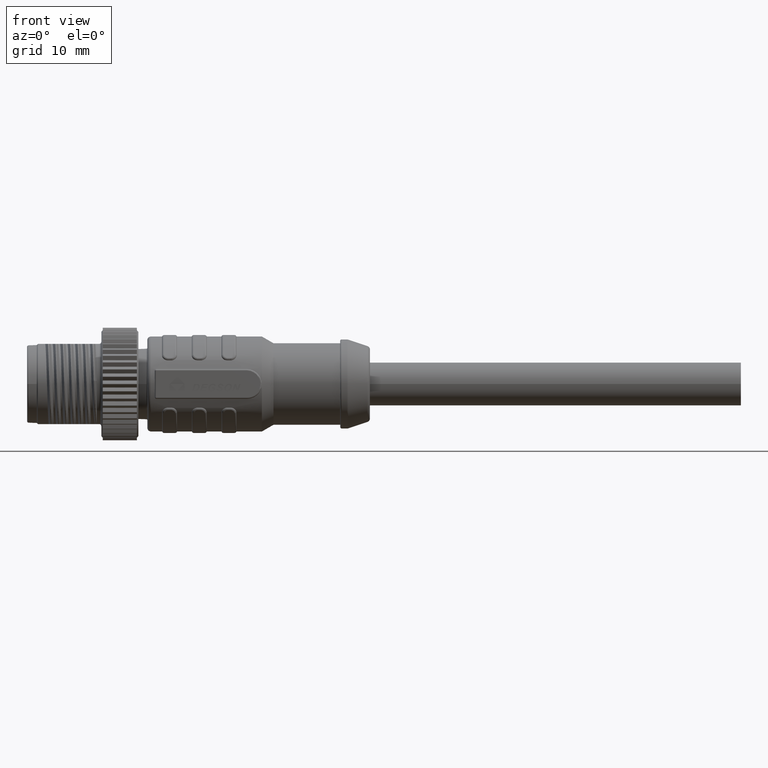
[diagram: clean part render]
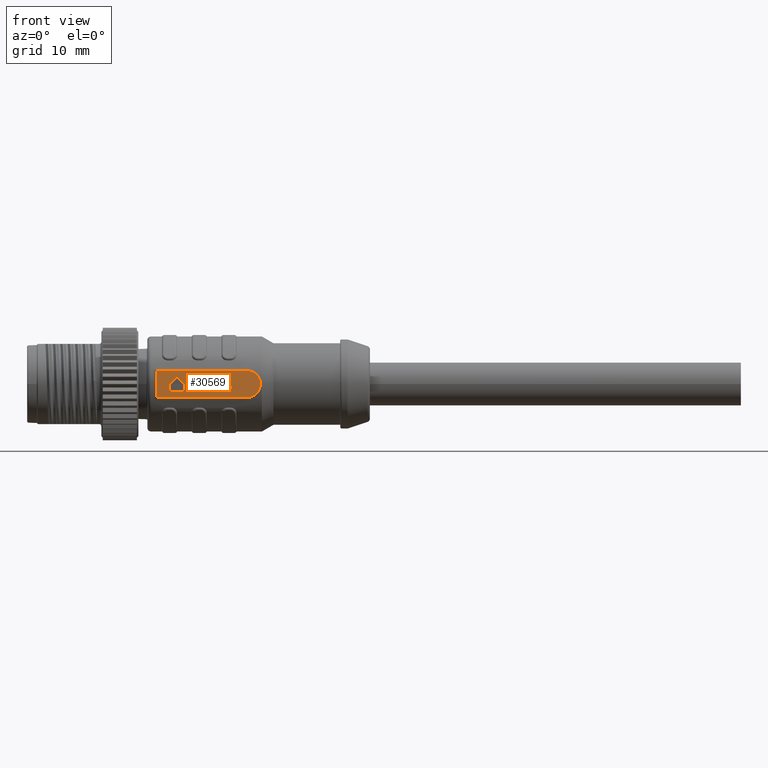
[diagram: same view with one face highlighted and labeled with its STEP entity id]
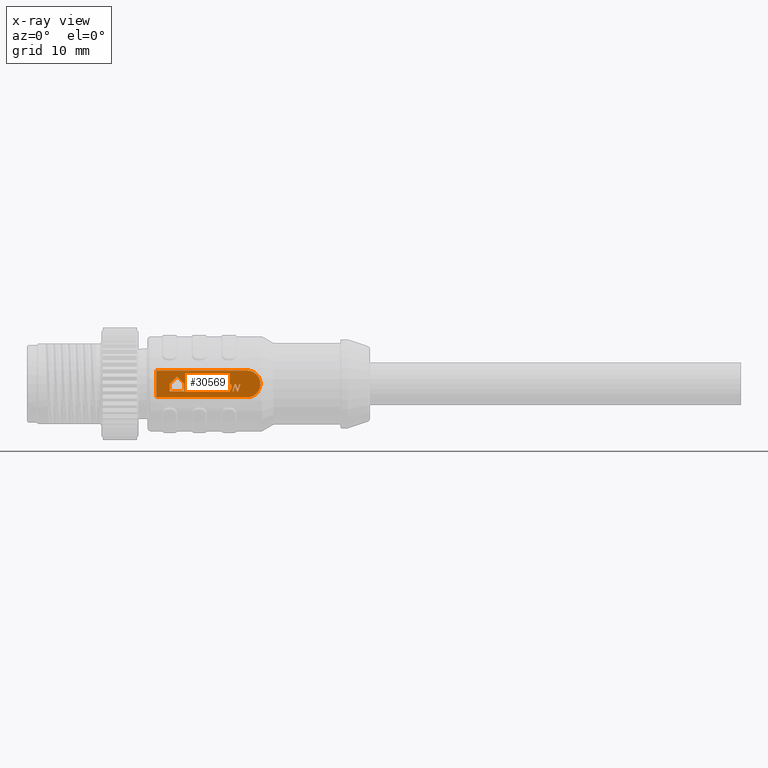
[diagram: x-ray of the same camera — body ghosted, the highlighted face saturated]
A machine part, front view. The second image highlights one B-rep face of the part: STEP entity #30569.
The next image is the same camera in x-ray: the body ghosted, the highlighted face saturated — about 0% of this face is hidden behind the body in this view.
In plain terms, the highlighted planar face has unit normal (0, -1, 0).
Its self-contained STEP definition (entity closure, byte-faithful):
#8620=CARTESIAN_POINT('',(2.764389124998E1,-6.5E0,1.8E0));
#8621=CARTESIAN_POINT('',(2.782065713183E1,-6.5E0,1.8E0));
#8622=CARTESIAN_POINT('',(2.816570129220E1,-6.5E0,1.747460894127E0));
#8623=CARTESIAN_POINT('',(2.863636010980E1,-6.5E0,1.529292975220E0));
#8624=CARTESIAN_POINT('',(2.902630474974E1,-6.5E0,1.187494788529E0));
#8625=CARTESIAN_POINT('',(2.930391359785E1,-6.5E0,7.508229405648E-1));
#8626=CARTESIAN_POINT('',(2.944775709303E1,-6.5E0,2.541903757882E-1));
#8627=CARTESIAN_POINT('',(2.944652959172E1,-6.5E0,-2.626508921095E-1));
#8628=CARTESIAN_POINT('',(2.930043074042E1,-6.5E0,-7.585899213788E-1));
#8629=CARTESIAN_POINT('',(2.902055342389E1,-6.5E0,-1.193982009575E0));
#8630=CARTESIAN_POINT('',(2.862990461017E1,-6.5E0,-1.533815264108E0));
#8631=CARTESIAN_POINT('',(2.815499675331E1,-6.5E0,-1.750256088831E0));
#8632=CARTESIAN_POINT('',(2.781784370656E1,-6.5E0,-1.8E0));
#8633=CARTESIAN_POINT('',(2.764115427319E1,-6.5E0,-1.8E0));
#8635=DIRECTION('',(-7.073002448757E-1,0.E0,7.069132645514E-1));
#8636=VECTOR('',#8635,1.414600701594E0);
#8637=CARTESIAN_POINT('',(1.921109588188E1,-6.5E0,-3.745850950108E-8));
#8638=LINE('',#8637,#8636);
#8639=DIRECTION('',(-7.069131585727E-1,0.E0,-7.073003507964E-1));
#8640=VECTOR('',#8639,1.413826529102E0);
#8641=CARTESIAN_POINT('',(1.821054845924E1,-6.5E0,9.999999625423E-1));
#8642=LINE('',#8641,#8640);
#8643=DIRECTION('',(9.589569212920E-1,0.E0,2.835517996877E-1));
#8644=VECTOR('',#8643,7.639400004780E-2);
#8645=CARTESIAN_POINT('',(2.076247728649E1,-6.5E0,-9.851033778080E-1));
#8646=LINE('',#8645,#8644);
#8647=DIRECTION('',(9.167350819881E-1,0.E0,3.994956688779E-1));
#8648=VECTOR('',#8647,7.066951711548E-2);
#8649=CARTESIAN_POINT('',(2.083573584158E1,-6.5E0,-9.634417216091E-1));
#8650=LINE('',#8649,#8648);
#8651=DIRECTION('',(8.501110711302E-1,0.E0,5.266034245444E-1));
#8652=VECTOR('',#8651,6.617880202795E-2);
#8653=CARTESIAN_POINT('',(2.090052106715E1,-6.5E0,-9.352095555998E-1));
#8654=LINE('',#8653,#8652);
#8655=DIRECTION('',(7.641037668336E-1,0.E0,6.450933525550E-1));
#8656=VECTOR('',#8655,8.497851680301E-2);
#8657=CARTESIAN_POINT('',(2.095678039943E1,-6.5E0,-9.003595718196E-1));
#8658=LINE('',#8657,#8656);
#8659=DIRECTION('',(6.658651903566E-1,0.E0,7.460720798096E-1));
#8660=VECTOR('',#8659,8.880075427323E-2);
#8661=CARTESIAN_POINT('',(2.102171280421E1,-6.5E0,-8.455404955200E-1));
#8662=LINE('',#8661,#8660);
#8663=DIRECTION('',(5.657860489429E-1,0.E0,8.245520886042E-1));
#8664=VECTOR('',#8663,9.433524320746E-2);
#8665=CARTESIAN_POINT('',(2.108084213536E1,-6.5E0,-7.792887320907E-1));
#8666=LINE('',#8665,#8664);
#8667=DIRECTION('',(4.490173478045E-1,0.E0,8.935230390821E-1));
#8668=VECTOR('',#8667,9.786608259186E-2);
#8669=CARTESIAN_POINT('',(2.113421569989E1,-6.5E0,-7.015044102750E-1));
#8670=LINE('',#8669,#8668);
#8671=DIRECTION('',(3.105482281001E-1,0.E0,9.505576247781E-1));
#8672=VECTOR('',#8671,1.006094531060E-1);
#8673=CARTESIAN_POINT('',(2.117815926874E1,-6.5E0,-6.140588107345E-1));
#8674=LINE('',#8673,#8672);
#8675=DIRECTION('',(-5.841296201554E-1,0.E0,8.116603888679E-1));
#8676=VECTOR('',#8675,3.400609090598E-2);
#8677=CARTESIAN_POINT('',(2.117800157648E1,-6.5E0,-1.343274999604E-1));
#8678=LINE('',#8677,#8676);
#8679=DIRECTION('',(-6.796554336691E-1,0.E0,7.335315204434E-1));
#8680=VECTOR('',#8679,3.346471650984E-2);
#8681=CARTESIAN_POINT('',(2.115813761152E1,-6.5E0,-1.067261029918E-1));
#8682=LINE('',#8681,#8680);
#8683=DIRECTION('',(-7.635072733919E-1,0.E0,6.457992284586E-1));
#8684=VECTOR('',#8683,3.295636466883E-2);
#8685=CARTESIAN_POINT('',(2.113539313510E1,-6.5E0,-8.217867860914E-2));
#8686=LINE('',#8685,#8684);
#8687=DIRECTION('',(-3.053292478477E-1,0.E0,-9.522468432128E-1));
#8688=VECTOR('',#8687,1.050147915518E0);
#8689=CARTESIAN_POINT('',(2.053173675505E1,-6.5E0,0.E0));
#8690=LINE('',#8689,#8688);
#8691=DIRECTION('',(2.959506692363E-1,0.E0,9.552032251718E-1));
#8692=VECTOR('',#8691,8.257132749928E-2);
#8693=CARTESIAN_POINT('',(2.262814986144E1,-6.5E0,-5.148703962747E-1));
#8694=LINE('',#8693,#8692);
#8695=DIRECTION('',(4.199847567257E-1,0.E0,9.075311587588E-1));
#8696=VECTOR('',#8695,8.200293759242E-2);
#8697=CARTESIAN_POINT('',(2.265258690108E1,-6.5E0,-4.359979979407E-1));
#8698=LINE('',#8697,#8696);
#8699=DIRECTION('',(5.432872833932E-1,0.E0,8.395468585512E-1));
#8700=VECTOR('',#8699,7.868832137788E-2);
#8701=CARTESIAN_POINT('',(2.268702688487E1,-6.5E0,-3.615777769658E-1));
#8702=LINE('',#8701,#8700);
#8703=DIRECTION('',(6.782801024461E-1,0.E0,7.348034448924E-1));
#8704=VECTOR('',#8703,7.272236087433E-2);
#8705=CARTESIAN_POINT('',(2.272977724923E1,-6.5E0,-2.955152439484E-1));
#8706=LINE('',#8705,#8704);
#8707=DIRECTION('',(8.071395952356E-1,0.E0,5.903606302954E-1));
#8708=VECTOR('',#8707,6.932439031422E-2);
#8709=CARTESIAN_POINT('',(2.277910337961E1,-6.5E0,-2.420786026572E-1));
#8710=LINE('',#8709,#8708);
#8711=DIRECTION('',(9.035956576237E-1,0.E0,4.283863764448E-1));
#8712=VECTOR('',#8711,6.702010302918E-2);
#8713=CARTESIAN_POINT('',(2.283505783995E1,-6.5E0,-2.011522118964E-1));
#8714=LINE('',#8713,#8712);
#8715=DIRECTION('',(8.482278649170E-1,0.E0,-5.296314654346E-1));
#8716=VECTOR('',#8715,4.500829411475E-2);
#8717=CARTESIAN_POINT('',(2.312240462681E1,-6.5E0,-1.684783815870E-1));
#8718=LINE('',#8717,#8716);
#8719=DIRECTION('',(6.732943388605E-1,0.E0,-7.393745554578E-1));
#8720=VECTOR('',#8719,4.502295924450E-2);
#8721=CARTESIAN_POINT('',(2.316058191603E1,-6.5E0,-1.923161903557E-1));
#8722=LINE('',#8721,#8720);
#8723=DIRECTION('',(4.658320431999E-1,0.E0,-8.848731590054E-1));
#8724=VECTOR('',#8723,4.808074935556E-2);
#8725=CARTESIAN_POINT('',(2.319089561961E1,-6.5E0,-2.256050208325E-1));
#8726=LINE('',#8725,#8724);
#8727=DIRECTION('',(9.937048610141E-1,0.E0,1.120296799827E-1));
#8728=VECTOR('',#8727,1.952801207218E-1);
#8729=CARTESIAN_POINT('',(2.322787970474E1,-6.5E0,-3.198997198200E-1));
#8730=LINE('',#8729,#8728);
#8731=DIRECTION('',(-2.082028552422E-1,0.E0,9.780856665288E-1));
#8732=VECTOR('',#8731,9.664386655616E-2);
#8733=CARTESIAN_POINT('',(2.342193050996E1,-6.5E0,-2.980225503886E-1));
#8734=LINE('',#8733,#8732);
#8735=DIRECTION('',(-4.331704089468E-1,0.E0,9.013120418661E-1));
#8736=VECTOR('',#8735,8.672694499766E-2);
#8737=CARTESIAN_POINT('',(2.340180898100E1,-6.5E0,-2.034965697521E-1));
#8738=LINE('',#8737,#8736);
#8739=DIRECTION('',(-6.647819617235E-1,0.E0,7.470374444210E-1));
#8740=VECTOR('',#8739,8.269104074517E-2);
#8741=CARTESIAN_POINT('',(2.336424143477E1,-6.5E0,-1.253285298714E-1));
#8742=LINE('',#8741,#8740);
#8743=DIRECTION('',(-8.506462437028E-1,0.E0,5.257384978050E-1));
#8744=VECTOR('',#8743,8.519416187487E-2);
#8745=CARTESIAN_POINT('',(2.330926992249E1,-6.5E0,-6.355522611664E-2));
#8746=LINE('',#8745,#8744);
#8747=DIRECTION('',(-9.580207854023E-1,0.E0,2.866987525910E-1));
#8748=VECTOR('',#8747,9.361470102806E-2);
#8749=CARTESIAN_POINT('',(2.323679982870E1,-6.5E0,-1.876537543079E-2));
#8750=LINE('',#8749,#8748);
#8751=DIRECTION('',(-9.617368273041E-1,0.E0,-2.739749532476E-1));
#8752=VECTOR('',#8751,1.079388806513E-1);
#8753=CARTESIAN_POINT('',(2.292862715445E1,-6.5E0,7.153970909106E-3));
#8754=LINE('',#8753,#8752);
#8755=DIRECTION('',(-8.895316989400E-1,0.E0,-4.568734579518E-1));
#8756=VECTOR('',#8755,1.078839986126E-1);
#8757=CARTESIAN_POINT('',(2.282481835783E1,-6.5E0,-2.241857887092E-2));
#8758=LINE('',#8757,#8756);
#8759=DIRECTION('',(-7.896288850281E-1,0.E0,-6.135847324773E-1));
#8760=VECTOR('',#8759,1.094312638677E-1);
#8761=CARTESIAN_POINT('',(2.272885212125E1,-6.5E0,-7.170791437471E-2));
#8762=LINE('',#8761,#8760);
#8763=DIRECTION('',(-6.707341178758E-1,0.E0,-7.416978785984E-1));
#8764=VECTOR('',#8763,1.121445790359E-1);
#8765=CARTESIAN_POINT('',(2.264244203438E1,-6.5E0,-1.388532671396E-1));
#8766=LINE('',#8765,#8764);
#8767=DIRECTION('',(-5.423619236506E-1,0.E0,-8.401449540252E-1));
#8768=VECTOR('',#8767,1.181611773183E-1);
#8769=CARTESIAN_POINT('',(2.256722283909E1,-6.5E0,-2.220306635069E-1));
#8770=LINE('',#8769,#8768);
#8771=DIRECTION('',(-4.231620147839E-1,0.E0,-9.060540321879E-1));
#8772=VECTOR('',#8771,9.988319614816E-2);
#8773=CARTESIAN_POINT('',(2.250313671565E1,-6.5E0,-3.213031803925E-1));
#8774=LINE('',#8773,#8772);
#8775=DIRECTION('',(-3.035918302721E-1,0.E0,-9.528021833476E-1));
#8776=VECTOR('',#8775,9.780713645407E-2);
#8777=CARTESIAN_POINT('',(2.246086994113E1,-6.5E0,-4.118027530104E-1));
#8778=LINE('',#8777,#8776);
#8779=DIRECTION('',(2.832871635828E-1,0.E0,-9.590351312383E-1));
#8780=VECTOR('',#8779,1.156041522543E-1);
#8781=CARTESIAN_POINT('',(2.241418603152E1,-6.5E0,-7.344670524199E-1));
#8782=LINE('',#8781,#8780);
#8783=DIRECTION('',(5.957779303476E-1,0.E0,-8.031492126067E-1));
#8784=VECTOR('',#8783,1.093757985857E-1);
#8785=CARTESIAN_POINT('',(2.244693520391E1,-6.5E0,-8.453354957488E-1));
#8786=LINE('',#8785,#8784);
#8787=DIRECTION('',(8.344921367610E-1,0.E0,-5.510198487207E-1));
#8788=VECTOR('',#8787,8.450014947841E-2);
#8789=CARTESIAN_POINT('',(2.251209889082E1,-6.5E0,-9.331805822611E-1));
#8790=LINE('',#8789,#8788);
#8791=DIRECTION('',(9.566061312019E-1,0.E0,-2.913841274795E-1));
#8792=VECTOR('',#8791,9.587964788443E-2);
#8793=CARTESIAN_POINT('',(2.258261360111E1,-6.5E0,-9.797418418435E-1));
#8794=LINE('',#8793,#8792);
#8795=DIRECTION('',(9.475889482628E-1,0.E0,3.194920736579E-1));
#8796=VECTOR('',#8795,7.966246551088E-2);
#8797=CARTESIAN_POINT('',(2.302546595475E1,-6.5E0,-9.816026103413E-1));
#8798=LINE('',#8797,#8796);
#8799=DIRECTION('',(9.203341213416E-1,0.E0,3.911331040636E-1));
#8800=VECTOR('',#8799,7.382000597899E-2);
#8801=CARTESIAN_POINT('',(2.310095322666E1,-6.5E0,-9.561510840426E-1));
#8802=LINE('',#8801,#8800);
#8803=DIRECTION('',(8.819382726722E-1,0.E0,4.713649151093E-1));
#8804=VECTOR('',#8803,6.848112495850E-2);
#8805=CARTESIAN_POINT('',(2.316889229700E1,-6.5E0,-9.272776359620E-1));
#8806=LINE('',#8805,#8804);
#8807=DIRECTION('',(3.059299016357E-1,0.E0,9.520540401076E-1));
#8808=VECTOR('',#8807,4.507113808230E-1);
#8809=CARTESIAN_POINT('',(2.322928842206E1,-6.5E0,-8.949980363093E-1));
#8810=LINE('',#8809,#8808);
#8811=DIRECTION('',(-3.048854713102E-1,0.E0,-9.523890220829E-1));
#8812=VECTOR('',#8811,1.755265255325E-1);
#8813=CARTESIAN_POINT('',(2.291965446670E1,-6.5E0,-4.658964452741E-1));
#8814=LINE('',#8813,#8812);
#8815=DIRECTION('',(-3.032092243053E-1,0.E0,-9.529240086682E-1));
#8816=VECTOR('',#8815,1.558845004627E-1);
#8817=CARTESIAN_POINT('',(2.312132180659E1,-6.5E0,-6.330659812762E-1));
#8818=LINE('',#8817,#8816);
#8819=DIRECTION('',(-9.366527529590E-1,0.E0,3.502593615800E-1));
#8820=VECTOR('',#8819,5.734246173987E-2);
#8821=CARTESIAN_POINT('',(2.274422185768E1,-6.5E0,-8.384863963372E-1));
#8822=LINE('',#8821,#8820);
#8823=DIRECTION('',(-7.690744699156E-1,0.E0,6.391591818350E-1));
#8824=VECTOR('',#8823,5.247697082445E-2);
#8825=CARTESIAN_POINT('',(2.269051188303E1,-6.5E0,-8.184016622968E-1));
#8826=LINE('',#8825,#8824);
#8827=DIRECTION('',(-4.868715340718E-1,0.E0,8.734735882158E-1));
#8828=VECTOR('',#8827,5.446729854623E-2);
#8829=CARTESIAN_POINT('',(2.265015318451E1,-6.5E0,-7.848605245594E-1));
#8830=LINE('',#8829,#8828);
#8831=DIRECTION('',(3.060848186883E-1,0.E0,9.520042456673E-1));
#8832=VECTOR('',#8831,2.384477024787E-1);
#8833=CARTESIAN_POINT('',(2.169379710025E1,-6.5E0,-3.941727611316E-1));
#8834=LINE('',#8833,#8832);
#8835=DIRECTION('',(3.03825555E-1,0.E0,9.527276799427E-1));
#8836=VECTOR('',#8835,1.754641326387E-1);
#8837=CARTESIAN_POINT('',(2.230227360605E1,-6.5E0,-1.671695360023E-1));
#8838=LINE('',#8837,#8836);
#8839=DIRECTION('',(-3.049206747081E-1,0.E0,-9.523777518063E-1));
#8840=VECTOR('',#8839,1.050003567977E0);
#8841=CARTESIAN_POINT('',(2.161426765100E1,-6.5E0,0.E0));
#8842=LINE('',#8841,#8840);
#8843=DIRECTION('',(3.073271086861E-1,0.E0,9.516039345582E-1));
#8844=VECTOR('',#8843,1.756713375510E-1);
#8845=CARTESIAN_POINT('',(2.207523884217E1,-6.5E0,-1.000000037459E0));
#8846=LINE('',#8845,#8844);
#8847=DIRECTION('',(3.235663988689E-1,0.E0,9.462054668638E-1));
#8848=VECTOR('',#8847,2.869230984502E-1);
#8849=CARTESIAN_POINT('',(2.154740088786E1,-6.5E0,-8.328305014566E-1));
#8850=LINE('',#8849,#8848);
#8851=DIRECTION('',(3.038255550173E-1,0.E0,9.527276799372E-1));
#8852=VECTOR('',#8851,1.754641326408E-1);
#8853=CARTESIAN_POINT('',(2.215805354644E1,-6.5E0,-5.613422971339E-1));
#8854=LINE('',#8853,#8852);
#8855=DIRECTION('',(4.893705266640E-1,0.E0,-8.720759643704E-1));
#8856=VECTOR('',#8855,5.465102934309E-2);
#8857=CARTESIAN_POINT('',(2.355160608913E1,-6.5E0,-8.533199791704E-1));
#8858=LINE('',#8857,#8856);
#8859=DIRECTION('',(7.062248425919E-1,0.E0,-7.079876211531E-1));
#8860=VECTOR('',#8859,5.665586001169E-2);
#8861=CARTESIAN_POINT('',(2.357835069214E1,-6.5E0,-9.009798282886E-1));
#8862=LINE('',#8861,#8860);
#8863=DIRECTION('',(8.528153423191E-1,0.E0,-5.222125926336E-1));
#8864=VECTOR('',#8863,6.243720979724E-2);
#8865=CARTESIAN_POINT('',(2.361836246796E1,-6.5E0,-9.410914758427E-1));
#8866=LINE('',#8865,#8864);
#8867=DIRECTION('',(9.361649327261E-1,0.E0,-3.515611166412E-1));
#8868=VECTOR('',#8867,6.843355863461E-2);
#8869=CARTESIAN_POINT('',(2.367160987840E1,-6.5E0,-9.736969730477E-1));
#8870=LINE('',#8869,#8868);
#8871=DIRECTION('',(9.550539159013E-1,0.E0,2.964321469100E-1));
#8872=VECTOR('',#8871,1.054359359527E-1);
#8873=CARTESIAN_POINT('',(2.400681625740E1,-6.5E0,-1.006586316587E0));
#8874=LINE('',#8873,#8872);
#8875=DIRECTION('',(8.515984696394E-1,0.E0,5.241946647076E-1));
#8876=VECTOR('',#8875,9.952380377757E-2);
#8877=CARTESIAN_POINT('',(2.410751326091E1,-6.5E0,-9.753317157314E-1));
#8878=LINE('',#8877,#8876);
#8879=DIRECTION('',(7.012137054252E-1,0.E0,7.129511479224E-1));
#8880=VECTOR('',#8879,9.359701111550E-2);
#8881=CARTESIAN_POINT('',(2.419226757990E1,-6.5E0,-9.231618687798E-1));
#8882=LINE('',#8881,#8880);
#8883=DIRECTION('',(4.982927592142E-1,0.E0,8.670088385447E-1));
#8884=VECTOR('',#8883,8.693294401471E-2);
#8885=CARTESIAN_POINT('',(2.425789908688E1,-6.5E0,-8.564317722629E-1));
#8886=LINE('',#8885,#8884);
#8887=DIRECTION('',(2.425070428838E-1,0.E0,9.701496452361E-1));
#8888=VECTOR('',#8887,8.629289662599E-2);
#8889=CARTESIAN_POINT('',(2.430121714342E1,-6.5E0,-7.810601414414E-1));
#8890=LINE('',#8889,#8888);
#8891=DIRECTION('',(-5.571602772360E-1,0.E0,8.304049767856E-1));
#8892=VECTOR('',#8891,6.009638264281E-2);
#8893=CARTESIAN_POINT('',(2.430488611573E1,-6.5E0,-5.716763947015E-1));
#8894=LINE('',#8893,#8892);
#8895=DIRECTION('',(-7.737522923859E-1,0.E0,6.334882714207E-1));
#8896=VECTOR('',#8895,5.370181635982E-2);
#8897=CARTESIAN_POINT('',(2.427140279852E1,-6.5E0,-5.217720594681E-1));
#8898=LINE('',#8897,#8896);
#8899=DIRECTION('',(-8.634626829844E-1,0.E0,5.044127229694E-1));
#8900=VECTOR('',#8899,7.962569134353E-2);
#8901=CARTESIAN_POINT('',(2.422985089500E1,-6.5E0,-4.877525886502E-1));
#8902=LINE('',#8901,#8900);
#8903=DIRECTION('',(-9.003584334621E-1,0.E0,4.351490449188E-1));
#8904=VECTOR('',#8903,1.776846820190E-1);
#8905=CARTESIAN_POINT('',(2.416109708192E1,-6.5E0,-4.475883768613E-1));
#8906=LINE('',#8905,#8904);
#8907=DIRECTION('',(-8.711735602167E-1,0.E0,4.909751806145E-1));
#8908=VECTOR('',#8907,5.324618283546E-2);
#8909=CARTESIAN_POINT('',(2.400111717997E1,-6.5E0,-3.702690571840E-1));
#8910=LINE('',#8909,#8908);
#8911=DIRECTION('',(-8.022430047792E-1,0.E0,5.969976225103E-1));
#8912=VECTOR('',#8911,3.590572227841E-2);
#8913=CARTESIAN_POINT('',(2.395473051330E1,-6.5E0,-3.441265029494E-1));
#8914=LINE('',#8913,#8912);
#8915=DIRECTION('',(7.230370323620E-1,0.E0,6.908092716757E-1));
#8916=VECTOR('',#8915,3.147867217325E-2);
#8917=CARTESIAN_POINT('',(2.392251399002E1,-6.5E0,-1.977565724352E-1));
#8918=LINE('',#8917,#8916);
#8919=DIRECTION('',(8.328735945490E-1,0.E0,-5.534632557840E-1));
#8920=VECTOR('',#8919,3.826463025019E-2);
#8921=CARTESIAN_POINT('',(2.416511297738E1,-6.5E0,-1.629854352552E-1));
#8922=LINE('',#8921,#8920);
#8923=DIRECTION('',(6.061080111935E-1,0.E0,-7.953823475330E-1));
#8924=VECTOR('',#8923,3.665821105962E-2);
#8925=CARTESIAN_POINT('',(2.419698257752E1,-6.5E0,-1.841635020948E-1));
#8926=LINE('',#8925,#8924);
#8927=DIRECTION('',(-3.485192984883E-1,0.E0,9.373016049177E-1));
#8928=VECTOR('',#8927,7.812535055286E-2);
#8929=CARTESIAN_POINT('',(2.442823823695E1,-6.5E0,-1.998223407027E-1));
#8930=LINE('',#8929,#8928);
#8931=DIRECTION('',(-6.158555096828E-1,0.E0,7.878591188742E-1));
#8932=VECTOR('',#8931,7.765262616614E-2);
#8933=CARTESIAN_POINT('',(2.440101004458E1,-6.5E0,-1.265953242447E-1));
#8934=LINE('',#8933,#8932);
#8935=DIRECTION('',(-8.296065898985E-1,0.E0,5.583483733271E-1));
#8936=VECTOR('',#8935,8.200716654534E-2);
#8937=CARTESIAN_POINT('',(2.435318724691E1,-6.5E0,-6.541599461522E-2));
#8938=LINE('',#8937,#8936);
#8939=DIRECTION('',(-9.543150502546E-1,0.E0,2.988022504226E-1));
#8940=VECTOR('',#8939,9.195125974065E-2);
#8941=CARTESIAN_POINT('',(2.428515356113E1,-6.5E0,-1.962742657346E-2));
#8942=LINE('',#8941,#8940);
#8943=DIRECTION('',(-9.569150153081E-1,0.E0,-2.903681344051E-1));
#8944=VECTOR('',#8943,9.543671789808E-2);
#8945=CARTESIAN_POINT('',(2.398250537184E1,-6.5E0,7.774227372628E-3));
#8946=LINE('',#8945,#8944);
#8947=DIRECTION('',(-8.522098890931E-1,0.E0,-5.232000620527E-1));
#8948=VECTOR('',#8947,8.826986473097E-2);
#8949=CARTESIAN_POINT('',(2.389118054347E1,-6.5E0,-1.993755435718E-2));
#8950=LINE('',#8949,#8948);
#8951=DIRECTION('',(-6.902672976127E-1,0.E0,-7.235544608711E-1));
#8952=VECTOR('',#8951,8.337698844467E-2);
#8953=CARTESIAN_POINT('',(2.381595609184E1,-6.5E0,-6.612035306181E-2));
#8954=LINE('',#8953,#8952);
#8955=DIRECTION('',(-4.808309759295E-1,0.E0,-8.768133054344E-1));
#8956=VECTOR('',#8955,7.960627192935E-2);
#8957=CARTESIAN_POINT('',(2.375840368334E1,-6.5E0,-1.264481449849E-1));
#8958=LINE('',#8957,#8956);
#8959=DIRECTION('',(6.489372718118E-1,0.E0,-7.608419134442E-1));
#8960=VECTOR('',#8959,3.832931558367E-2);
#8961=CARTESIAN_POINT('',(2.373710471915E1,-6.5E0,-4.354776136678E-1));
#8962=LINE('',#8961,#8960);
#8963=DIRECTION('',(7.749186183711E-1,0.E0,-6.320610215017E-1));
#8964=VECTOR('',#8963,3.918639596805E-2);
#8965=CARTESIAN_POINT('',(2.376197804064E1,-6.5E0,-4.646401634775E-1));
#8966=LINE('',#8965,#8964);
#8967=DIRECTION('',(8.533290683733E-1,0.E0,-5.213727084045E-1));
#8968=VECTOR('',#8967,4.675967636260E-2);
#8969=CARTESIAN_POINT('',(2.379234430846E1,-6.5E0,-4.894083569420E-1));
#8970=LINE('',#8969,#8968);
#8971=DIRECTION('',(8.853692303383E-1,0.E0,-4.648885091827E-1));
#8972=VECTOR('',#8971,6.036707857846E-2);
#8973=CARTESIAN_POINT('',(2.383224569953E1,-6.5E0,-5.137875760513E-1));
#8974=LINE('',#8973,#8972);
#8975=DIRECTION('',(9.031944196986E-1,0.E0,-4.292316859522E-1));
#8976=VECTOR('',#8975,1.451892151337E-1);
#8977=CARTESIAN_POINT('',(2.388569285343E1,-6.5E0,-5.418515372154E-1));
#8978=LINE('',#8977,#8976);
#8979=DIRECTION('',(8.784585284591E-1,0.E0,-4.778185992377E-1));
#8980=VECTOR('',#8979,5.091223767792E-2);
#8981=CARTESIAN_POINT('',(2.401682694234E1,-6.5E0,-6.041713488093E-1));
#8982=LINE('',#8981,#8980);
#8983=DIRECTION('',(-7.338652456877E-1,0.E0,-6.792950766579E-1));
#8984=VECTOR('',#8983,3.804790922263E-2);
#8985=CARTESIAN_POINT('',(2.408854814201E1,-6.5E0,-7.832310377015E-1));
#8986=LINE('',#8985,#8984);
#8987=DIRECTION('',(-8.871374197492E-1,0.E0,-4.615053612698E-1));
#8988=VECTOR('',#8987,4.337197823268E-2);
#8989=CARTESIAN_POINT('',(2.406062610376E1,-6.5E0,-8.090767951136E-1));
#8990=LINE('',#8989,#8988);
#8991=DIRECTION('',(-7.653046028334E-1,0.E0,6.436682879264E-1));
#8992=VECTOR('',#8991,4.606626808327E-2);
#8993=CARTESIAN_POINT('',(2.378532174746E1,-6.5E0,-8.215081991145E-1));
#8994=LINE('',#8993,#8992);
#8995=DIRECTION('',(4.021013786410E-1,0.E0,-9.155951514152E-1));
#8996=VECTOR('',#8995,6.469503367815E-2);
#8997=CARTESIAN_POINT('',(2.460408610178E1,-6.5E0,-7.969660314618E-1));
#8998=LINE('',#8997,#8996);
#8999=DIRECTION('',(5.959490568135E-1,0.E0,-8.030222423340E-1));
#9000=VECTOR('',#8999,6.531380303719E-2);
#9001=CARTESIAN_POINT('',(2.463010006401E1,-6.5E0,-8.562004906182E-1));
#9002=LINE('',#9001,#9000);
#9003=DIRECTION('',(7.502458772153E-1,0.E0,-6.611589247083E-1));
#9004=VECTOR('',#9003,6.915165600300E-2);
#9005=CARTESIAN_POINT('',(2.466902376333E1,-6.5E0,-9.086489271884E-1));
#9006=LINE('',#9005,#9004);
#9007=DIRECTION('',(8.777695762027E-1,0.E0,-4.790830523958E-1));
#9008=VECTOR('',#9007,7.335750844367E-2);
#9009=CARTESIAN_POINT('',(2.472090450815E1,-6.5E0,-9.543691617132E-1));
#9010=LINE('',#9009,#9008);
#9011=DIRECTION('',(9.633628649576E-1,0.E0,-2.682013989908E-1));
#9012=VECTOR('',#9011,7.876732522883E-2);
#9013=CARTESIAN_POINT('',(2.478529549725E1,-6.5E0,-9.895135007745E-1));
#9014=LINE('',#9013,#9012);
#9015=DIRECTION('',(9.658540863276E-1,0.E0,2.590866340131E-1));
#9016=VECTOR('',#9015,1.026787059277E-1);
#9017=CARTESIAN_POINT('',(2.505316204170E1,-6.5E0,-1.008836059069E0));
#9018=LINE('',#9017,#9016);
#9019=DIRECTION('',(9.039099706803E-1,0.E0,4.277227664093E-1));
#9020=VECTOR('',#9019,1.037953146862E-1);
#9021=CARTESIAN_POINT('',(2.515233468940E1,-6.5E0,-9.822333787657E-1));
#9022=LINE('',#9021,#9020);
#9023=DIRECTION('',(8.165214178918E-1,0.E0,5.773151428154E-1));
#9024=VECTOR('',#9023,1.051253968213E-1);
#9025=CARTESIAN_POINT('',(2.524615630926E1,-6.5E0,-9.378377596278E-1));
#9026=LINE('',#9025,#9024);
#9027=DIRECTION('',(7.063465446975E-1,0.E0,7.078662011947E-1));
#9028=VECTOR('',#9027,1.072272262811E-1);
#9029=CARTESIAN_POINT('',(2.533199344732E1,-6.5E0,-8.771472761483E-1));
#9030=LINE('',#9029,#9028);
#9031=DIRECTION('',(5.844662668236E-1,0.E0,8.114180075308E-1));
#9032=VECTOR('',#9031,1.122840685853E-1);
#9033=CARTESIAN_POINT('',(2.540773302811E1,-6.5E0,-8.012447468161E-1));
#9034=LINE('',#9033,#9032);
#9035=DIRECTION('',(4.648220249111E-1,0.E0,8.854041366278E-1));
#9036=VECTOR('',#9035,1.127563653950E-1);
#9037=CARTESIAN_POINT('',(2.547335927850E1,-6.5E0,-7.101354316072E-1));
#9038=LINE('',#9037,#9036);
#9039=DIRECTION('',(3.333583099684E-1,0.E0,9.428002106359E-1));
#9040=VECTOR('',#9039,1.082949106125E-1);
#9041=CARTESIAN_POINT('',(2.552577092058E1,-6.5E0,-6.103004792553E-1));
#9042=LINE('',#9041,#9040);
#9043=DIRECTION('',(1.867918378081E-1,0.E0,9.823995161482E-1));
#9044=VECTOR('',#9043,1.067977259531E-1);
#9045=CARTESIAN_POINT('',(2.556187192896E1,-6.5E0,-5.082000147191E-1));
#9046=LINE('',#9045,#9044);
#9047=DIRECTION('',(-2.538175732895E-1,0.E0,9.672521075136E-1));
#9048=VECTOR('',#9047,1.049724585895E-1);
#9049=CARTESIAN_POINT('',(2.558216078663E1,-6.5E0,-2.849834624351E-1));
#9050=LINE('',#9049,#9048);
#9051=DIRECTION('',(-5.360393674917E-1,0.E0,8.441929853411E-1));
#9052=VECTOR('',#9051,1.009136558974E-1);
#9053=CARTESIAN_POINT('',(2.555551693193E1,-6.5E0,-1.834486306335E-1));
#9054=LINE('',#9053,#9052);
#9055=DIRECTION('',(-7.685999384701E-1,0.E0,6.397297355788E-1));
#9056=VECTOR('',#9055,1.000947069482E-1);
#9057=CARTESIAN_POINT('',(2.550142323965E1,-6.5E0,-9.825803019973E-2));
#9058=LINE('',#9057,#9056);
#9059=DIRECTION('',(-9.278703404327E-1,0.E0,3.729029784613E-1));
#9060=VECTOR('',#9059,1.030411176515E-1);
#9061=CARTESIAN_POINT('',(2.542449045405E1,-6.5E0,-3.422446979093E-2));
#9062=LINE('',#9061,#9060);
#9063=DIRECTION('',(-9.296551808104E-1,0.E0,-3.684307869768E-1));
#9064=VECTOR('',#9063,8.517408016073E-2);
#9065=CARTESIAN_POINT('',(2.504047833007E1,-6.5E0,-7.963457886227E-3));
#9066=LINE('',#9065,#9064);
#9067=DIRECTION('',(-8.663198789244E-1,0.E0,-4.994896068793E-1));
#9068=VECTOR('',#9067,8.404113490449E-2);
#9069=CARTESIAN_POINT('',(2.496129580518E1,-6.5E0,-3.934421126987E-2));
#9070=LINE('',#9069,#9068);
#9071=DIRECTION('',(-7.896211993091E-1,0.E0,-6.135946231851E-1));
#9072=VECTOR('',#9071,8.310439775540E-2);
#9073=CARTESIAN_POINT('',(2.488848929936E1,-6.5E0,-8.132188470500E-2));
#9074=LINE('',#9073,#9072);
#9075=DIRECTION('',(-6.972102095321E-1,0.E0,-7.168667405622E-1));
#9076=VECTOR('',#9075,8.370020610301E-2);
#9077=CARTESIAN_POINT('',(2.482286830514E1,-6.5E0,-1.323142963308E-1));
#9078=LINE('',#9077,#9076);
#9079=DIRECTION('',(-5.975572970705E-1,0.E0,-8.018262135387E-1));
#9080=VECTOR('',#9079,8.548430619244E-2);
#9081=CARTESIAN_POINT('',(2.476451166691E1,-6.5E0,-1.923161902642E-1));
#9082=LINE('',#9081,#9080);
#9083=DIRECTION('',(-4.984879781394E-1,0.E0,-8.668966118578E-1));
#9084=VECTOR('',#9083,8.789010050828E-2);
#9085=CARTESIAN_POINT('',(2.471342989596E1,-6.5E0,-2.608597478155E-1));
#9086=LINE('',#9085,#9084);
#9087=DIRECTION('',(-3.988920683661E-1,0.E0,-9.169978832007E-1));
#9088=VECTOR('',#9087,9.149151344406E-2);
#9089=CARTESIAN_POINT('',(2.466961773745E1,-6.5E0,-3.370513781619E-1));
#9090=LINE('',#9089,#9088);
#9091=DIRECTION('',(-3.229396958591E-1,0.E0,-9.464195437745E-1));
#9092=VECTOR('',#9091,6.805307929937E-2);
#9093=CARTESIAN_POINT('',(2.463312249842E1,-6.5E0,-4.209489023210E-1));
#9094=LINE('',#9093,#9092);
#9095=DIRECTION('',(3.049792698583E-1,0.E0,9.523589895395E-1));
#9096=VECTOR('',#9095,7.055612817850E-1);
#9097=CARTESIAN_POINT('',(2.583863756638E1,-6.5E0,-1.000000037459E0));
#9098=LINE('',#9097,#9096);
#9099=DIRECTION('',(2.790935552488E-1,0.E0,-9.602639155038E-1));
#9100=VECTOR('',#9099,6.997530767638E-1);
#9101=CARTESIAN_POINT('',(2.605381913094E1,-6.5E0,-3.280524080800E-1));
#9102=LINE('',#9101,#9100);
#9103=DIRECTION('',(3.047027004661E-1,0.E0,9.524475126371E-1));
#9104=VECTOR('',#9103,1.049926661774E0);
#9105=CARTESIAN_POINT('',(2.644097458782E1,-6.5E0,-1.000000037459E0));
#9106=LINE('',#9105,#9104);
#9107=DIRECTION('',(-3.051424075012E-1,0.E0,-9.523067316492E-1));
#9108=VECTOR('',#9107,7.026690607069E-1);
#9109=CARTESIAN_POINT('',(2.656996157786E1,-6.5E0,0.E0));
#9110=LINE('',#9109,#9108);
#9111=DIRECTION('',(-2.814790280489E-1,0.E0,9.595673800045E-1));
#9112=VECTOR('',#9111,6.973522553772E-1);
#9113=CARTESIAN_POINT('',(2.635554744900E1,-6.5E0,-6.691564766328E-1));
#9114=LINE('',#9113,#9112);
#9115=DIRECTION('',(-3.046890753916E-1,0.E0,-9.524518714019E-1));
#9116=VECTOR('',#9115,1.049921856930E0);
#9117=CARTESIAN_POINT('',(2.596692545428E1,-6.5E0,0.E0));
#9118=LINE('',#9117,#9116);
#9119=DIRECTION('',(1.E0,0.E0,0.E0));
#9120=VECTOR('',#9119,1.224115427319E1);
#9121=CARTESIAN_POINT('',(1.54E1,-6.5E0,-1.8E0));
#9122=LINE('',#9121,#9120);
#9144=DIRECTION('',(0.E0,0.E0,-1.E0));
#9145=VECTOR('',#9144,3.6E0);
#9146=CARTESIAN_POINT('',(1.54E1,-6.5E0,1.8E0));
#9147=LINE('',#9146,#9145);
#9169=DIRECTION('',(-1.E0,0.E0,0.E0));
#9170=VECTOR('',#9169,1.224389124998E1);
#9171=CARTESIAN_POINT('',(2.764389124998E1,-6.5E0,1.8E0));
#9172=LINE('',#9171,#9170);
#9207=DIRECTION('',(-1.E0,0.E0,0.E0));
#9208=VECTOR('',#9207,2.E0);
#9209=CARTESIAN_POINT('',(1.921109588188E1,-6.5E0,-1.000000037459E0));
#9210=LINE('',#9209,#9208);
#9215=DIRECTION('',(-5.115907697463E-13,0.E0,1.E0));
#9216=VECTOR('',#9215,1.000000000002E0);
#9217=CARTESIAN_POINT('',(1.721109588188E1,-6.5E0,-1.000000037459E0));
#9218=LINE('',#9217,#9216);
#9231=DIRECTION('',(0.E0,0.E0,-1.E0));
#9232=VECTOR('',#9231,1.E0);
#9233=CARTESIAN_POINT('',(1.921109588188E1,-6.5E0,-3.745850950108E-8));
#9234=LINE('',#9233,#9232);
#9295=DIRECTION('',(-9.999999253272E-1,0.E0,-3.864524783141E-4));
#9296=VECTOR('',#9295,3.525105000871E-1);
#9297=CARTESIAN_POINT('',(2.056360635564E1,-6.5E0,-9.998638089020E-1));
#9298=LINE('',#9297,#9296);
#9307=DIRECTION('',(9.999999927604E-1,0.E0,-1.203298179977E-4));
#9308=VECTOR('',#9307,2.693803868094E-1);
#9309=CARTESIAN_POINT('',(2.053173675505E1,-6.5E0,0.E0));
#9310=LINE('',#9309,#9308);
#9315=DIRECTION('',(9.999797577598E-1,0.E0,-6.362709374744E-3));
#9316=VECTOR('',#9315,6.609015267413E-2);
#9317=CARTESIAN_POINT('',(2.080111713991E1,-6.5E0,-3.241449291663E-5));
#9318=LINE('',#9317,#9316);
#9323=DIRECTION('',(9.997082198117E-1,0.E0,-2.415523216635E-2));
#9324=VECTOR('',#9323,4.791036680568E-2);
#9325=CARTESIAN_POINT('',(2.086720595477E1,-6.5E0,-4.529269269146E-4));
#9326=LINE('',#9325,#9324);
#9331=DIRECTION('',(9.984109911577E-1,0.E0,-5.635151049820E-2));
#9332=VECTOR('',#9331,2.745509230904E-2);
#9333=CARTESIAN_POINT('',(2.091510234228E1,-6.5E0,-1.610212960281E-3));
#9334=LINE('',#9333,#9332);
#9339=DIRECTION('',(9.905148717881E-1,0.E0,-1.374055630849E-1));
#9340=VECTOR('',#9339,4.193989636906E-2);
#9341=CARTESIAN_POINT('',(2.094251380820E1,-6.5E0,-3.157348882763E-3));
#9342=LINE('',#9341,#9340);
#9347=DIRECTION('',(9.739511365301E-1,0.E0,-2.267579847585E-1));
#9348=VECTOR('',#9347,3.699638917750E-2);
#9349=CARTESIAN_POINT('',(2.098405589928E1,-6.5E0,-8.920123959075E-3));
#9350=LINE('',#9349,#9348);
#9355=DIRECTION('',(9.451570445611E-1,0.E0,-3.266162291078E-1));
#9356=VECTOR('',#9355,3.469764934429E-2);
#9357=CARTESIAN_POINT('',(2.102008857457E1,-6.5E0,-1.730935061231E-2));
#9358=LINE('',#9357,#9356);
#9363=DIRECTION('',(9.000348146020E-1,0.E0,-4.358180038782E-1));
#9364=VECTOR('',#9363,3.313160896536E-2);
#9365=CARTESIAN_POINT('',(2.105288330227E1,-6.5E0,-2.864216600004E-2));
#9366=LINE('',#9365,#9364);
#9371=DIRECTION('',(8.395443456524E-1,0.E0,-5.432911665792E-1));
#9372=VECTOR('',#9371,3.278898525218E-2);
#9373=CARTESIAN_POINT('',(2.108270290381E1,-6.5E0,-4.308151768460E-2));
#9374=LINE('',#9373,#9372);
#9391=DIRECTION('',(4.854652976525E-1,0.E0,-8.742559377981E-1));
#9392=VECTOR('',#9391,3.517876269433E-2);
#9393=CARTESIAN_POINT('',(2.117800157648E1,-6.5E0,-1.343274999604E-1));
#9394=LINE('',#9393,#9392);
#9399=DIRECTION('',(3.833039596799E-1,0.E0,-9.236222574699E-1));
#9400=VECTOR('',#9399,3.672453626444E-2);
#9401=CARTESIAN_POINT('',(2.119507964498E1,-6.5E0,-1.650827421303E-1));
#9402=LINE('',#9401,#9400);
#9407=DIRECTION('',(2.785068943977E-1,0.E0,-9.604342298007E-1));
#9408=VECTOR('',#9407,3.867185930425E-2);
#9409=CARTESIAN_POINT('',(2.120915630515E1,-6.5E0,-1.990023412194E-1));
#9410=LINE('',#9409,#9408);
#9415=DIRECTION('',(1.811786887374E-1,0.E0,-9.834501933232E-1));
#9416=VECTOR('',#9415,4.113941968886E-2);
#9417=CARTESIAN_POINT('',(2.121992668459E1,-6.5E0,-2.361441186253E-1));
#9418=LINE('',#9417,#9416);
#9423=DIRECTION('',(9.011155391736E-2,0.E0,-9.959316783046E-1));
#9424=VECTOR('',#9423,4.390831402745E-2);
#9425=CARTESIAN_POINT('',(2.122738027070E1,-6.5E0,-2.766026888715E-1));
#9426=LINE('',#9425,#9424);
#9431=DIRECTION('',(2.929105667916E-3,0.E0,-9.999957101608E-1));
#9432=VECTOR('',#9431,4.565047241022E-2);
#9433=CARTESIAN_POINT('',(2.123133691711E1,-6.5E0,-3.203323697524E-1));
#9434=LINE('',#9433,#9432);
#9439=DIRECTION('',(-7.443298218326E-2,0.E0,-9.972260180938E-1));
#9440=VECTOR('',#9439,4.880973310360E-2);
#9441=CARTESIAN_POINT('',(2.123147063216E1,-6.5E0,-3.659826463294E-1));
#9442=LINE('',#9441,#9440);
#9447=DIRECTION('',(-1.749119283163E-1,0.E0,-9.845840834244E-1));
#9448=VECTOR('',#9447,1.053914516700E-1);
#9449=CARTESIAN_POINT('',(2.122783757817E1,-6.5E0,-4.146569821165E-1));
#9450=LINE('',#9449,#9448);
#9487=DIRECTION('',(-9.871528776249E-1,0.E0,-1.597785849134E-1));
#9488=VECTOR('',#9487,5.204475470240E-2);
#9489=CARTESIAN_POINT('',(2.076247728649E1,-6.5E0,-9.851033778080E-1));
#9490=LINE('',#9489,#9488);
#9495=DIRECTION('',(-9.970721749366E-1,0.E0,-7.646618839176E-2));
#9496=VECTOR('',#9495,6.646739392145E-2);
#9497=CARTESIAN_POINT('',(2.071110115712E1,-6.5E0,-9.934190150665E-1));
#9498=LINE('',#9497,#9496);
#9503=DIRECTION('',(-9.998593734871E-1,0.E0,-1.677001043538E-2));
#9504=VECTOR('',#9503,8.123343603457E-2);
#9505=CARTESIAN_POINT('',(2.064482836810E1,-6.5E0,-9.985015233320E-1));
#9506=LINE('',#9505,#9504);
#9936=DIRECTION('',(-1.713438000492E-1,0.E0,-9.852112982425E-1));
#9937=VECTOR('',#9936,8.665384886371E-2);
#9938=CARTESIAN_POINT('',(2.262814986144E1,-6.5E0,-5.148703962747E-1));
#9939=LINE('',#9938,#9937);
#9944=DIRECTION('',(-1.909658394845E-2,0.E0,-9.998176436138E-1));
#9945=VECTOR('',#9944,7.670405627529E-2);
#9946=CARTESIAN_POINT('',(2.261330226169E1,-6.5E0,-6.002427472114E-1));
#9947=LINE('',#9946,#9945);
#9952=DIRECTION('',(1.918414894518E-1,0.E0,-9.814259232998E-1));
#9953=VECTOR('',#9952,6.149415907286E-2);
#9954=CARTESIAN_POINT('',(2.261183747624E1,-6.5E0,-6.769328160122E-1));
#9955=LINE('',#9954,#9953);
#9972=DIRECTION('',(9.950973928009E-1,0.E0,-9.889984247163E-2));
#9973=VECTOR('',#9972,6.413519442500E-2);
#9974=CARTESIAN_POINT('',(2.274422185768E1,-6.5E0,-8.384863963372E-1));
#9975=LINE('',#9974,#9973);
#9980=DIRECTION('',(9.995174864451E-1,0.E0,3.106113794652E-2));
#9981=VECTOR('',#9980,4.538860959959E-2);
#9982=CARTESIAN_POINT('',(2.280804262244E1,-6.5E0,-8.448293569627E-1));
#9983=LINE('',#9982,#9981);
#9988=DIRECTION('',(9.907582541788E-1,0.E0,1.356395288131E-1));
#9989=VECTOR('',#9988,4.892537635880E-2);
#9990=CARTESIAN_POINT('',(2.285340933142E1,-6.5E0,-8.434195350988E-1));
#9991=LINE('',#9990,#9989);
#9996=DIRECTION('',(9.763248349590E-1,0.E0,2.163095389535E-1));
#9997=VECTOR('',#9996,4.840639148027E-2);
#9998=CARTESIAN_POINT('',(2.290188255189E1,-6.5E0,-8.367833201025E-1));
#9999=LINE('',#9998,#9997);
#10004=DIRECTION('',(9.607992539665E-1,0.E0,2.772450064067E-1));
#10005=VECTOR('',#10004,4.756921431378E-2);
#10006=CARTESIAN_POINT('',(2.294914291406E1,-6.5E0,-8.263125558790E-1));
#10007=LINE('',#10006,#10005);
#10012=DIRECTION('',(9.415805414191E-1,0.E0,3.367878917375E-1));
#10013=VECTOR('',#10012,4.424718436973E-2);
#10014=CARTESIAN_POINT('',(2.299484737968E1,-6.5E0,-8.131242287518E-1));
#10015=LINE('',#10014,#10013);
#10020=DIRECTION('',(9.145071008524E-1,0.E0,4.045698487166E-1));
#10021=VECTOR('',#10020,4.105656543348E-2);
#10022=CARTESIAN_POINT('',(2.303650966750E1,-6.5E0,-7.982223128126E-1));
#10023=LINE('',#10022,#10021);
#10032=DIRECTION('',(-1.E0,0.E0,2.619989410576E-12));
#10033=VECTOR('',#10032,2.551828273544E-1);
#10034=CARTESIAN_POINT('',(2.312132180659E1,-6.5E0,-6.330659812762E-1));
#10035=LINE('',#10034,#10033);
#10044=DIRECTION('',(1.E0,0.E0,-5.077027166871E-13));
#10045=VECTOR('',#10044,4.475200437613E-1);
#10046=CARTESIAN_POINT('',(2.291965446670E1,-6.5E0,-4.658964452741E-1));
#10047=LINE('',#10046,#10045);
#10068=DIRECTION('',(-9.706628310931E-1,0.E0,-2.404447303112E-1));
#10069=VECTOR('',#10068,8.165154143174E-2);
#10070=CARTESIAN_POINT('',(2.302546595475E1,-6.5E0,-9.816026103413E-1));
#10071=LINE('',#10070,#10069);
#10076=DIRECTION('',(-9.891072296716E-1,0.E0,-1.471967669871E-1));
#10077=VECTOR('',#10076,8.024054251449E-2);
#10078=CARTESIAN_POINT('',(2.294620983838E1,-6.5E0,-1.001235293200E0));
#10079=LINE('',#10078,#10077);
#10084=DIRECTION('',(-9.987703815978E-1,0.E0,-4.957544596886E-2));
#10085=VECTOR('',#10084,7.962736051732E-2);
#10086=CARTESIAN_POINT('',(2.286684333767E1,-6.5E0,-1.013046441640E0));
#10087=LINE('',#10086,#10085);
#10092=DIRECTION('',(-9.966189158399E-1,0.E0,8.216286624771E-2));
#10093=VECTOR('',#10092,1.133645232787E-1);
#10094=CARTESIAN_POINT('',(2.278731388842E1,-6.5E0,-1.016994003549E0));
#10095=LINE('',#10094,#10093);
#10116=DIRECTION('',(-8.387441143386E-4,0.E0,9.999996482541E-1));
#10117=VECTOR('',#10116,1.336957916868E-1);
#10118=CARTESIAN_POINT('',(2.241418603152E1,-6.5E0,-7.344670524199E-1));
#10119=LINE('',#10118,#10117);
#10124=DIRECTION('',(1.757850366532E-1,0.E0,9.844285758189E-1));
#10125=VECTOR('',#10124,9.729268729280E-2);
#10126=CARTESIAN_POINT('',(2.241407389496E1,-6.5E0,-6.007713077600E-1));
#10127=LINE('',#10126,#10125);
#10160=DIRECTION('',(9.961225971755E-1,0.E0,8.797597056207E-2));
#10161=VECTOR('',#10160,1.120279143722E-1);
#10162=CARTESIAN_POINT('',(2.292862715445E1,-6.5E0,7.153970909106E-3));
#10163=LINE('',#10162,#10161);
#10168=DIRECTION('',(9.965240958126E-1,0.E0,-8.330502064644E-2));
#10169=VECTOR('',#10168,1.072671581925E-1);
#10170=CARTESIAN_POINT('',(2.304022069147E1,-6.5E0,1.700973540605E-2));
#10171=LINE('',#10170,#10169);
#10200=DIRECTION('',(-2.712976144987E-1,0.E0,9.624955087518E-1));
#10201=VECTOR('',#10200,5.376579313609E-2);
#10202=CARTESIAN_POINT('',(2.322787970474E1,-6.5E0,-3.198997198200E-1));
#10203=LINE('',#10202,#10201);
#10220=DIRECTION('',(-9.543368410613E-1,0.E0,2.987326460117E-1));
#10221=VECTOR('',#10220,4.773711380497E-2);
#10222=CARTESIAN_POINT('',(2.312240462681E1,-6.5E0,-1.684783815870E-1));
#10223=LINE('',#10222,#10221);
#10228=DIRECTION('',(-9.960280181715E-1,0.E0,8.904036734711E-2));
#10229=VECTOR('',#10228,5.324865664617E-2);
#10230=CARTESIAN_POINT('',(2.307684734042E1,-6.5E0,-1.542177472670E-1));
#10231=LINE('',#10230,#10229);
#10236=DIRECTION('',(-9.961613684914E-1,0.E0,-8.753586650790E-2));
#10237=VECTOR('',#10236,6.557309054265E-2);
#10238=CARTESIAN_POINT('',(2.302381018647E1,-6.5E0,-1.494764673185E-1));
#10239=LINE('',#10238,#10237);
#10244=DIRECTION('',(-9.644580050838E-1,0.E0,-2.642361754753E-1));
#10245=VECTOR('',#10244,6.518883404613E-2);
#10246=CARTESIAN_POINT('',(2.295848880686E1,-6.5E0,-1.552164646188E-1));
#10247=LINE('',#10246,#10245);
#10512=DIRECTION('',(1.E0,0.E0,1.404170059240E-12));
#10513=VECTOR('',#10512,5.175669336752E-1);
#10514=CARTESIAN_POINT('',(2.169379710025E1,-6.5E0,-3.941727611316E-1));
#10515=LINE('',#10514,#10513);
#10524=DIRECTION('',(-1.E0,0.E0,6.800950799056E-13));
#10525=VECTOR('',#10524,5.178139848622E-1);
#10526=CARTESIAN_POINT('',(2.215805354644E1,-6.5E0,-5.613422971339E-1));
#10527=LINE('',#10526,#10525);
#10536=DIRECTION('',(1.E0,0.E0,3.755275572305E-13));
#10537=VECTOR('',#10536,5.818265185586E-1);
#10538=CARTESIAN_POINT('',(2.154740088786E1,-6.5E0,-8.328305014566E-1));
#10539=LINE('',#10538,#10537);
#10548=DIRECTION('',(-1.E0,0.E0,6.631727151476E-13));
#10549=VECTOR('',#10548,7.811389875634E-1);
#10550=CARTESIAN_POINT('',(2.207523884217E1,-6.5E0,-1.000000037459E0));
#10551=LINE('',#10550,#10549);
#10560=DIRECTION('',(1.E0,0.E0,-3.213305251647E-13));
#10561=VECTOR('',#10560,7.413164425316E-1);
#10562=CARTESIAN_POINT('',(2.161426765100E1,-6.5E0,0.E0));
#10563=LINE('',#10562,#10561);
#10572=DIRECTION('',(-1.E0,0.E0,5.100267216441E-14));
#10573=VECTOR('',#10572,5.354912840202E-1);
#10574=CARTESIAN_POINT('',(2.230227360605E1,-6.5E0,-1.671695360023E-1));
#10575=LINE('',#10574,#10573);
#10632=DIRECTION('',(-2.717607324869E-1,0.E0,9.623648498767E-1));
#10633=VECTOR('',#10632,5.607258240872E-2);
#10634=CARTESIAN_POINT('',(2.355160608913E1,-6.5E0,-8.533199791704E-1));
#10635=LINE('',#10634,#10633);
#10640=DIRECTION('',(-9.221284547137E-2,0.E0,9.957393188632E-1));
#10641=VECTOR('',#10640,5.934010876266E-2);
#10642=CARTESIAN_POINT('',(2.353636776306E1,-6.5E0,-7.993576968184E-1));
#10643=LINE('',#10642,#10641);
#10648=DIRECTION('',(6.787089916869E-2,0.E0,9.976941119632E-1));
#10649=VECTOR('',#10648,6.451347387270E-2);
#10650=CARTESIAN_POINT('',(2.353089584278E1,-6.5E0,-7.402704173378E-1));
#10651=LINE('',#10650,#10649);
#10656=DIRECTION('',(9.986498896152E-1,0.E0,5.194610641313E-2));
#10657=VECTOR('',#10656,1.970642128026E-1);
#10658=CARTESIAN_POINT('',(2.353527443026E1,-6.5E0,-6.759057043127E-1));
#10659=LINE('',#10658,#10657);
#10664=DIRECTION('',(-1.087405725053E-2,0.E0,-9.999408756916E-1));
#10665=VECTOR('',#10664,5.671771432160E-2);
#10666=CARTESIAN_POINT('',(2.373207258462E1,-6.5E0,-6.656689857443E-1));
#10667=LINE('',#10666,#10665);
#10672=DIRECTION('',(1.402439000129E-1,0.E0,-9.901169872844E-1));
#10673=VECTOR('',#10672,4.140342973372E-2);
#10674=CARTESIAN_POINT('',(2.373145583295E1,-6.5E0,-7.223833466703E-1));
#10675=LINE('',#10674,#10673);
#10680=DIRECTION('',(4.100706685536E-1,0.E0,-9.120537521396E-1));
#10681=VECTOR('',#10680,3.122537170418E-2);
#10682=CARTESIAN_POINT('',(2.373726241141E1,-6.5E0,-7.633775857814E-1));
#10683=LINE('',#10682,#10681);
#10692=DIRECTION('',(9.492130267583E-1,0.E0,-3.146341205788E-1));
#10693=VECTOR('',#10692,5.641755947407E-2);
#10694=CARTESIAN_POINT('',(2.378532174746E1,-6.5E0,-8.215081991145E-1));
#10695=LINE('',#10694,#10693);
#10700=DIRECTION('',(9.966258670893E-1,0.E0,-8.207850539840E-2));
#10701=VECTOR('',#10700,7.198233096281E-2);
#10702=CARTESIAN_POINT('',(2.383887402985E1,-6.5E0,-8.392590883248E-1));
#10703=LINE('',#10702,#10701);
#10708=DIRECTION('',(9.978658818778E-1,0.E0,6.529687423048E-2));
#10709=VECTOR('',#10708,6.166310542940E-2);
#10710=CARTESIAN_POINT('',(2.391061348286E1,-6.5E0,-8.451672904654E-1));
#10711=LINE('',#10710,#10709);
#10716=DIRECTION('',(9.721809861952E-1,0.E0,2.342309332272E-1));
#10717=VECTOR('',#10716,5.143508016927E-2);
#10718=CARTESIAN_POINT('',(2.397214499194E1,-6.5E0,-8.411408824255E-1));
#10719=LINE('',#10718,#10717);
#10732=DIRECTION('',(5.324157794090E-1,0.E0,8.464829814215E-1));
#10733=VECTOR('',#10732,3.437691439053E-2);
#10734=CARTESIAN_POINT('',(2.408854814201E1,-6.5E0,-7.832310377015E-1));
#10735=LINE('',#10734,#10733);
#10740=DIRECTION('',(2.577896032913E-1,0.E0,9.662010766062E-1));
#10741=VECTOR('',#10740,3.286576809001E-2);
#10742=CARTESIAN_POINT('',(2.410685095368E1,-6.5E0,-7.541315647161E-1));
#10743=LINE('',#10742,#10741);
#10748=DIRECTION('',(-2.317520065820E-2,0.E0,9.997314189693E-1));
#10749=VECTOR('',#10748,2.827587123222E-2);
#10750=CARTESIAN_POINT('',(2.411532340700E1,-6.5E0,-7.223766242041E-1));
#10751=LINE('',#10750,#10749);
#10756=DIRECTION('',(-3.554984292133E-1,0.E0,9.346768782991E-1));
#10757=VECTOR('',#10756,2.729746159661E-2);
#10758=CARTESIAN_POINT('',(2.411466810801E1,-6.5E0,-6.941083473345E-1));
#10759=LINE('',#10758,#10757);
#10764=DIRECTION('',(-6.351322730861E-1,0.E0,7.724033892238E-1));
#10765=VECTOR('',#10764,2.852765996308E-2);
#10766=CARTESIAN_POINT('',(2.410496390329E1,-6.5E0,-6.685940411439E-1));
#10767=LINE('',#10766,#10765);
#10772=DIRECTION('',(-8.138248794448E-1,0.E0,5.811102009058E-1));
#10773=VECTOR('',#10772,3.108019266052E-2);
#10774=CARTESIAN_POINT('',(2.408684506577E1,-6.5E0,-6.465591799018E-1));
#10775=LINE('',#10774,#10773);
#11116=DIRECTION('',(-4.980073003886E-1,0.E0,8.671728367285E-1));
#11117=VECTOR('',#11116,3.875752315413E-2);
#11118=CARTESIAN_POINT('',(2.373710471915E1,-6.5E0,-4.354776136678E-1));
#11119=LINE('',#11118,#11117);
#11124=DIRECTION('',(-3.196816849721E-1,0.E0,9.475249971866E-1));
#11125=VECTOR('',#11124,4.015290298614E-2);
#11126=CARTESIAN_POINT('',(2.371780318968E1,-6.5E0,-4.018681423697E-1));
#11127=LINE('',#11126,#11125);
#11132=DIRECTION('',(-1.311728815806E-1,0.E0,9.913595085224E-1));
#11133=VECTOR('',#11132,4.021261949633E-2);
#11134=CARTESIAN_POINT('',(2.370496704199E1,-6.5E0,-3.638222630807E-1));
#11135=LINE('',#11134,#11133);
#11140=DIRECTION('',(2.432833714555E-2,0.E0,9.997040222044E-1));
#11141=VECTOR('',#11140,4.710132977620E-2);
#11142=CARTESIAN_POINT('',(2.369969223682E1,-6.5E0,-3.239571003804E-1));
#11143=LINE('',#11142,#11141);
#11148=DIRECTION('',(2.326790933508E-1,0.E0,9.725535664E-1));
#11149=VECTOR('',#11148,8.289695388376E-2);
#11150=CARTESIAN_POINT('',(2.370083813385E1,-6.5E0,-2.768697115520E-1));
#11151=LINE('',#11150,#11149);
#11172=DIRECTION('',(9.963248092657E-1,0.E0,8.565555698041E-2));
#11173=VECTOR('',#11172,1.078214696073E-1);
#11174=CARTESIAN_POINT('',(2.398250537184E1,-6.5E0,7.774227372628E-3));
#11175=LINE('',#11174,#11173);
#11180=DIRECTION('',(9.963859948473E-1,0.E0,-8.494085749579E-2));
#11181=VECTOR('',#11180,1.078623280969E-1);
#11182=CARTESIAN_POINT('',(2.408993057698E1,-6.5E0,1.700973540629E-2));
#11183=LINE('',#11182,#11181);
#11204=DIRECTION('',(7.739107207746E-2,0.E0,-9.970008134213E-1));
#11205=VECTOR('',#11204,8.564721632419E-2);
#11206=CARTESIAN_POINT('',(2.442823823695E1,-6.5E0,-1.998223407027E-1));
#11207=LINE('',#11206,#11205);
#11212=DIRECTION('',(-9.990076595805E-1,0.E0,-4.453870338808E-2));
#11213=VECTOR('',#11212,1.983897244526E-1);
#11214=CARTESIAN_POINT('',(2.443486656684E1,-6.5E0,-2.852126850452E-1));
#11215=LINE('',#11214,#11213);
#11220=DIRECTION('',(-9.618756770492E-2,0.E0,9.953632260733E-1));
#11221=VECTOR('',#11220,4.426445372808E-2);
#11222=CARTESIAN_POINT('',(2.423667371253E1,-6.5E0,-2.940487061378E-1));
#11223=LINE('',#11222,#11221);
#11228=DIRECTION('',(-3.390346363871E-1,0.E0,9.407738917136E-1));
#11229=VECTOR('',#11228,3.897716649441E-2);
#11230=CARTESIAN_POINT('',(2.423241602239E1,-6.5E0,-2.499894966747E-1));
#11231=LINE('',#11230,#11229);
#11244=DIRECTION('',(-9.572728899412E-1,0.E0,2.891861237744E-1));
#11245=VECTOR('',#11244,4.405997104320E-2);
#11246=CARTESIAN_POINT('',(2.416511297738E1,-6.5E0,-1.629854352552E-1));
#11247=LINE('',#11246,#11245);
#11252=DIRECTION('',(-9.967249220069E-1,0.E0,8.086674131090E-2));
#11253=VECTOR('',#11252,5.271570002826E-2);
#11254=CARTESIAN_POINT('',(2.412293556157E1,-6.5E0,-1.502439030156E-1));
#11255=LINE('',#11254,#11253);
#11260=DIRECTION('',(-9.979318078471E-1,0.E0,-6.428146612351E-2));
#11261=VECTOR('',#11260,5.192505896961E-2);
#11262=CARTESIAN_POINT('',(2.407039250957E1,-6.5E0,-1.459809561384E-1));
#11263=LINE('',#11262,#11261);
#11268=DIRECTION('',(-9.724106394578E-1,0.E0,-2.332756915524E-1));
#11269=VECTOR('',#11268,4.292541880779E-2);
#11270=CARTESIAN_POINT('',(2.401857484160E1,-6.5E0,-1.493187750575E-1));
#11271=LINE('',#11270,#11269);
#11276=DIRECTION('',(-8.841279605082E-1,0.E0,-4.672448495677E-1));
#11277=VECTOR('',#11276,3.569559308839E-2);
#11278=CARTESIAN_POINT('',(2.397683370765E1,-6.5E0,-1.593322318150E-1));
#11279=LINE('',#11278,#11277);
#11288=DIRECTION('',(-5.106671795865E-1,0.E0,-8.597784782682E-1));
#11289=VECTOR('',#11288,2.931508054367E-2);
#11290=CARTESIAN_POINT('',(2.392251399002E1,-6.5E0,-1.977565724352E-1));
#11291=LINE('',#11290,#11289);
#11296=DIRECTION('',(-2.443304477150E-1,0.E0,-9.696920296256E-1));
#11297=VECTOR('',#11296,2.913288992873E-2);
#11298=CARTESIAN_POINT('',(2.390754374052E1,-6.5E0,-2.229610477753E-1));
#11299=LINE('',#11298,#11297);
#11304=DIRECTION('',(1.768281998458E-2,0.E0,-9.998436467155E-1));
#11305=VECTOR('',#11304,2.714980792536E-2);
#11306=CARTESIAN_POINT('',(2.390042568848E1,-6.5E0,-2.512109789392E-1));
#11307=LINE('',#11306,#11305);
#11312=DIRECTION('',(3.391261404308E-1,0.E0,-9.407409106E-1));
#11313=VECTOR('',#11312,2.552568673153E-2);
#11314=CARTESIAN_POINT('',(2.390090577365E1,-6.5E0,-2.783565419029E-1));
#11315=LINE('',#11314,#11313);
#11320=DIRECTION('',(6.271734059002E-1,0.E0,-7.788796562573E-1));
#11321=VECTOR('',#11320,2.609038799385E-2);
#11322=CARTESIAN_POINT('',(2.390956220127E1,-6.5E0,-3.023695996824E-1));
#11323=LINE('',#11322,#11321);
#11352=DIRECTION('',(2.785069256897E-1,0.E0,-9.604342207267E-1));
#11353=VECTOR('',#11352,6.107158651748E-2);
#11354=CARTESIAN_POINT('',(2.430488611573E1,-6.5E0,-5.716763947015E-1));
#11355=LINE('',#11354,#11353);
#11360=DIRECTION('',(3.712816702449E-3,0.E0,-9.999931074723E-1));
#11361=VECTOR('',#11360,6.701194396801E-2);
#11362=CARTESIAN_POINT('',(2.432189497554E1,-6.5E0,-6.303316363070E-1));
#11363=LINE('',#11362,#11361);
#11388=DIRECTION('',(-9.960490485692E-1,0.E0,-8.880480192174E-2));
#11389=VECTOR('',#11388,1.171973444797E-1);
#11390=CARTESIAN_POINT('',(2.400681625740E1,-6.5E0,-1.006586316587E0));
#11391=LINE('',#11390,#11389);
#11396=DIRECTION('',(-9.982661558934E-1,0.E0,5.886154940101E-2));
#11397=VECTOR('',#11396,8.171060907487E-2);
#11398=CARTESIAN_POINT('',(2.389008195394E1,-6.5E0,-1.016994003550E0));
#11399=LINE('',#11398,#11397);
#11404=DIRECTION('',(-9.809384252885E-1,0.E0,1.943188251109E-1));
#11405=VECTOR('',#11404,7.425342939223E-2);
#11406=CARTESIAN_POINT('',(2.380851301832E1,-6.5E0,-1.012184390497E0));
#11407=LINE('',#11406,#11405);
#11428=DIRECTION('',(1.594362021786E-1,0.E0,9.872082340797E-1));
#11429=VECTOR('',#11428,6.082729083540E-2);
#11430=CARTESIAN_POINT('',(2.458556252103E1,-6.5E0,-6.076775318046E-1));
#11431=LINE('',#11430,#11429);
#11436=DIRECTION('',(2.471708571759E-1,0.E0,9.689719125769E-1));
#11437=VECTOR('',#11436,6.426673677832E-2);
#11438=CARTESIAN_POINT('',(2.459526059327E1,-6.5E0,-5.476283294351E-1));
#11439=LINE('',#11438,#11437);
#11476=DIRECTION('',(9.762128037694E-1,0.E0,2.168145792070E-1));
#11477=VECTOR('',#11476,8.645336678899E-2);
#11478=CARTESIAN_POINT('',(2.504047833007E1,-6.5E0,-7.963457886227E-3));
#11479=LINE('',#11478,#11477);
#11484=DIRECTION('',(9.975988234437E-1,0.E0,6.925740006529E-2));
#11485=VECTOR('',#11484,8.993758015958E-2);
#11486=CARTESIAN_POINT('',(2.512487521366E1,-6.5E0,1.078089245515E-2));
#11487=LINE('',#11486,#11485);
#11492=DIRECTION('',(9.937768076495E-1,0.E0,-1.113896610016E-1));
#11493=VECTOR('',#11492,1.150004894949E-1);
#11494=CARTESIAN_POINT('',(2.521459683781E1,-6.5E0,1.700973542517E-2));
#11495=LINE('',#11494,#11493);
#11516=DIRECTION('',(-2.873347632939E-3,0.E0,-9.999958719282E-1));
#11517=VECTOR('',#11516,1.182990063288E-1);
#11518=CARTESIAN_POINT('',(2.558216078663E1,-6.5E0,-2.849834624351E-1));
#11519=LINE('',#11518,#11517);
#11556=DIRECTION('',(-9.964298044331E-1,0.E0,-8.442538029157E-2));
#11557=VECTOR('',#11556,1.049720277499E-1);
#11558=CARTESIAN_POINT('',(2.505316204170E1,-6.5E0,-1.008836059069E0));
#11559=LINE('',#11558,#11557);
#11564=DIRECTION('',(-9.967530210828E-1,0.E0,8.051965575131E-2));
#11565=VECTOR('',#11564,8.767244184674E-2);
#11566=CARTESIAN_POINT('',(2.494856478462E1,-6.5E0,-1.017698362432E0));
#11567=LINE('',#11566,#11565);
#11592=DIRECTION('',(-2.327276380841E-1,0.E0,9.725419510087E-1));
#11593=VECTOR('',#11592,6.439294655393E-2);
#11594=CARTESIAN_POINT('',(2.460408610178E1,-6.5E0,-7.969660314618E-1));
#11595=LINE('',#11594,#11593);
#11600=DIRECTION('',(-9.766481432591E-2,0.E0,9.952193647848E-1));
#11601=VECTOR('',#11600,6.340101622163E-2);
#11602=CARTESIAN_POINT('',(2.458910008342E1,-6.5E0,-7.343411895891E-1));
#11603=LINE('',#11602,#11601);
#11608=DIRECTION('',(4.172333436899E-2,0.E0,9.991292025405E-1));
#11609=VECTOR('',#11608,6.362113982061E-2);
#11610=CARTESIAN_POINT('',(2.458290803494E1,-6.5E0,-6.712432704983E-1));
#11611=LINE('',#11610,#11609);
#12085=DIRECTION('',(-1.E0,0.E0,1.118266244856E-12));
#12086=VECTOR('',#12085,1.916118319214E-1);
#12087=CARTESIAN_POINT('',(2.583863756638E1,-6.5E0,-1.000000037459E0));
#12088=LINE('',#12087,#12086);
#12097=DIRECTION('',(1.E0,0.E0,-1.440606438943E-12));
#12098=VECTOR('',#12097,1.923319596680E-1);
#12099=CARTESIAN_POINT('',(2.596692545428E1,-6.5E0,0.E0));
#12100=LINE('',#12099,#12098);
#12113=DIRECTION('',(1.E0,0.E0,-3.174915082462E-12));
#12114=VECTOR('',#12113,1.909284990940E-1);
#12115=CARTESIAN_POINT('',(2.656996157786E1,-6.5E0,0.E0));
#12116=LINE('',#12115,#12114);
#12125=DIRECTION('',(-1.E0,0.E0,-4.629331758417E-13));
#12126=VECTOR('',#12125,1.918588828906E-1);
#12127=CARTESIAN_POINT('',(2.644097458782E1,-6.5E0,-1.000000037459E0));
#12128=LINE('',#12127,#12126);
#12493=CARTESIAN_POINT('',(2.154740088786E1,-6.5E0,-8.328305014566E-1));
#12494=CARTESIAN_POINT('',(2.164023956158E1,-6.5E0,-5.613422971335E-1));
#12495=VERTEX_POINT('',#12493);
#12496=VERTEX_POINT('',#12494);
#12501=VERTEX_POINT('',#8620);
#12502=VERTEX_POINT('',#8633);
#12503=CARTESIAN_POINT('',(1.54E1,-6.5E0,-1.8E0));
#12504=VERTEX_POINT('',#12503);
#12505=CARTESIAN_POINT('',(1.54E1,-6.5E0,1.8E0));
#12506=VERTEX_POINT('',#12505);
#12507=CARTESIAN_POINT('',(1.921109588188E1,-6.5E0,-1.000000037459E0));
#12508=CARTESIAN_POINT('',(1.721109588188E1,-6.5E0,-1.000000037459E0));
#12509=VERTEX_POINT('',#12507);
#12510=VERTEX_POINT('',#12508);
#12511=CARTESIAN_POINT('',(1.921109588188E1,-6.5E0,-3.745850950108E-8));
#12512=VERTEX_POINT('',#12511);
#12513=CARTESIAN_POINT('',(1.821054845924E1,-6.5E0,9.999999625423E-1));
#12514=VERTEX_POINT('',#12513);
#12515=CARTESIAN_POINT('',(1.721109588188E1,-6.5E0,-3.745700527524E-8));
#12516=VERTEX_POINT('',#12515);
#12517=CARTESIAN_POINT('',(2.056360635564E1,-6.5E0,-9.998638089020E-1));
#12518=CARTESIAN_POINT('',(2.021109588188E1,-6.5E0,-1.000000037458E0));
#12519=VERTEX_POINT('',#12517);
#12520=VERTEX_POINT('',#12518);
#12521=CARTESIAN_POINT('',(2.064482836810E1,-6.5E0,-9.985015233320E-1));
#12522=VERTEX_POINT('',#12521);
#12523=CARTESIAN_POINT('',(2.071110115712E1,-6.5E0,-9.934190150665E-1));
#12524=VERTEX_POINT('',#12523);
#12525=CARTESIAN_POINT('',(2.076247728649E1,-6.5E0,-9.851033778080E-1));
#12526=VERTEX_POINT('',#12525);
#12527=CARTESIAN_POINT('',(2.083573584158E1,-6.5E0,-9.634417216091E-1));
#12528=VERTEX_POINT('',#12527);
#12529=CARTESIAN_POINT('',(2.090052106715E1,-6.5E0,-9.352095555998E-1));
#12530=VERTEX_POINT('',#12529);
#12531=CARTESIAN_POINT('',(2.095678039943E1,-6.5E0,-9.003595718196E-1));
#12532=VERTEX_POINT('',#12531);
#12533=CARTESIAN_POINT('',(2.102171280421E1,-6.5E0,-8.455404955200E-1));
#12534=VERTEX_POINT('',#12533);
#12535=CARTESIAN_POINT('',(2.108084213536E1,-6.5E0,-7.792887320907E-1));
#12536=VERTEX_POINT('',#12535);
#12537=CARTESIAN_POINT('',(2.113421569989E1,-6.5E0,-7.015044102750E-1));
#12538=VERTEX_POINT('',#12537);
#12539=CARTESIAN_POINT('',(2.117815926874E1,-6.5E0,-6.140588107345E-1));
#12540=VERTEX_POINT('',#12539);
#12541=CARTESIAN_POINT('',(2.120940335613E1,-6.5E0,-5.184237279598E-1));
#12542=VERTEX_POINT('',#12541);
#12543=CARTESIAN_POINT('',(2.122783757817E1,-6.5E0,-4.146569821165E-1));
#12544=VERTEX_POINT('',#12543);
#12545=CARTESIAN_POINT('',(2.123147063216E1,-6.5E0,-3.659826463294E-1));
#12546=VERTEX_POINT('',#12545);
#12547=CARTESIAN_POINT('',(2.123133691711E1,-6.5E0,-3.203323697524E-1));
#12548=VERTEX_POINT('',#12547);
#12549=CARTESIAN_POINT('',(2.122738027070E1,-6.5E0,-2.766026888715E-1));
#12550=VERTEX_POINT('',#12549);
#12551=CARTESIAN_POINT('',(2.121992668459E1,-6.5E0,-2.361441186253E-1));
#12552=VERTEX_POINT('',#12551);
#12553=CARTESIAN_POINT('',(2.120915630515E1,-6.5E0,-1.990023412194E-1));
#12554=VERTEX_POINT('',#12553);
#12555=CARTESIAN_POINT('',(2.119507964498E1,-6.5E0,-1.650827421303E-1));
#12556=VERTEX_POINT('',#12555);
#12557=CARTESIAN_POINT('',(2.117800157648E1,-6.5E0,-1.343274999604E-1));
#12558=VERTEX_POINT('',#12557);
#12559=CARTESIAN_POINT('',(2.115813761152E1,-6.5E0,-1.067261029918E-1));
#12560=VERTEX_POINT('',#12559);
#12561=CARTESIAN_POINT('',(2.113539313510E1,-6.5E0,-8.217867860914E-2));
#12562=VERTEX_POINT('',#12561);
#12563=CARTESIAN_POINT('',(2.111023071097E1,-6.5E0,-6.089548373321E-2));
#12564=VERTEX_POINT('',#12563);
#12565=CARTESIAN_POINT('',(2.108270290381E1,-6.5E0,-4.308151768460E-2));
#12566=VERTEX_POINT('',#12565);
#12567=CARTESIAN_POINT('',(2.105288330227E1,-6.5E0,-2.864216600004E-2));
#12568=VERTEX_POINT('',#12567);
#12569=CARTESIAN_POINT('',(2.102008857457E1,-6.5E0,-1.730935061231E-2));
#12570=VERTEX_POINT('',#12569);
#12571=CARTESIAN_POINT('',(2.098405589928E1,-6.5E0,-8.920123959075E-3));
#12572=VERTEX_POINT('',#12571);
#12573=CARTESIAN_POINT('',(2.094251380820E1,-6.5E0,-3.157348882763E-3));
#12574=VERTEX_POINT('',#12573);
#12575=CARTESIAN_POINT('',(2.091510234228E1,-6.5E0,-1.610212960281E-3));
#12576=VERTEX_POINT('',#12575);
#12577=CARTESIAN_POINT('',(2.086720595477E1,-6.5E0,-4.529269269146E-4));
#12578=VERTEX_POINT('',#12577);
#12579=CARTESIAN_POINT('',(2.080111713991E1,-6.5E0,-3.241449291663E-5));
#12580=VERTEX_POINT('',#12579);
#12581=CARTESIAN_POINT('',(2.053173675505E1,-6.5E0,0.E0));
#12582=VERTEX_POINT('',#12581);
#12583=CARTESIAN_POINT('',(2.262814986144E1,-6.5E0,-5.148703962747E-1));
#12584=CARTESIAN_POINT('',(2.265258690108E1,-6.5E0,-4.359979979407E-1));
#12585=VERTEX_POINT('',#12583);
#12586=VERTEX_POINT('',#12584);
#12587=CARTESIAN_POINT('',(2.268702688487E1,-6.5E0,-3.615777769658E-1));
#12588=VERTEX_POINT('',#12587);
#12589=CARTESIAN_POINT('',(2.272977724923E1,-6.5E0,-2.955152439484E-1));
#12590=VERTEX_POINT('',#12589);
#12591=CARTESIAN_POINT('',(2.277910337961E1,-6.5E0,-2.420786026572E-1));
#12592=VERTEX_POINT('',#12591);
#12593=CARTESIAN_POINT('',(2.283505783995E1,-6.5E0,-2.011522118964E-1));
#12594=VERTEX_POINT('',#12593);
#12595=CARTESIAN_POINT('',(2.289561691402E1,-6.5E0,-1.724417128108E-1));
#12596=VERTEX_POINT('',#12595);
#12597=CARTESIAN_POINT('',(2.295848880686E1,-6.5E0,-1.552164646188E-1));
#12598=VERTEX_POINT('',#12597);
#12599=CARTESIAN_POINT('',(2.302381018647E1,-6.5E0,-1.494764673185E-1));
#12600=VERTEX_POINT('',#12599);
#12601=CARTESIAN_POINT('',(2.307684734042E1,-6.5E0,-1.542177472670E-1));
#12602=VERTEX_POINT('',#12601);
#12603=CARTESIAN_POINT('',(2.312240462681E1,-6.5E0,-1.684783815870E-1));
#12604=VERTEX_POINT('',#12603);
#12605=CARTESIAN_POINT('',(2.316058191603E1,-6.5E0,-1.923161903557E-1));
#12606=VERTEX_POINT('',#12605);
#12607=CARTESIAN_POINT('',(2.319089561961E1,-6.5E0,-2.256050208325E-1));
#12608=VERTEX_POINT('',#12607);
#12609=CARTESIAN_POINT('',(2.321329317332E1,-6.5E0,-2.681503854021E-1));
#12610=VERTEX_POINT('',#12609);
#12611=CARTESIAN_POINT('',(2.322787970474E1,-6.5E0,-3.198997198200E-1));
#12612=VERTEX_POINT('',#12611);
#12613=CARTESIAN_POINT('',(2.342193050996E1,-6.5E0,-2.980225503886E-1));
#12614=VERTEX_POINT('',#12613);
#12615=CARTESIAN_POINT('',(2.340180898100E1,-6.5E0,-2.034965697521E-1));
#12616=VERTEX_POINT('',#12615);
#12617=CARTESIAN_POINT('',(2.336424143477E1,-6.5E0,-1.253285298714E-1));
#12618=VERTEX_POINT('',#12617);
#12619=CARTESIAN_POINT('',(2.330926992249E1,-6.5E0,-6.355522611664E-2));
#12620=VERTEX_POINT('',#12619);
#12621=CARTESIAN_POINT('',(2.323679982870E1,-6.5E0,-1.876537543079E-2));
#12622=VERTEX_POINT('',#12621);
#12623=CARTESIAN_POINT('',(2.314711499930E1,-6.5E0,8.073842578139E-3));
#12624=VERTEX_POINT('',#12623);
#12625=CARTESIAN_POINT('',(2.304022069147E1,-6.5E0,1.700973540605E-2));
#12626=VERTEX_POINT('',#12625);
#12627=CARTESIAN_POINT('',(2.292862715445E1,-6.5E0,7.153970909106E-3));
#12628=VERTEX_POINT('',#12627);
#12629=CARTESIAN_POINT('',(2.282481835783E1,-6.5E0,-2.241857887092E-2));
#12630=VERTEX_POINT('',#12629);
#12631=CARTESIAN_POINT('',(2.272885212125E1,-6.5E0,-7.170791437471E-2));
#12632=VERTEX_POINT('',#12631);
#12633=CARTESIAN_POINT('',(2.264244203438E1,-6.5E0,-1.388532671396E-1));
#12634=VERTEX_POINT('',#12633);
#12635=CARTESIAN_POINT('',(2.256722283909E1,-6.5E0,-2.220306635069E-1));
#12636=VERTEX_POINT('',#12635);
#12637=CARTESIAN_POINT('',(2.250313671565E1,-6.5E0,-3.213031803925E-1));
#12638=VERTEX_POINT('',#12637);
#12639=CARTESIAN_POINT('',(2.246086994113E1,-6.5E0,-4.118027530104E-1));
#12640=VERTEX_POINT('',#12639);
#12641=CARTESIAN_POINT('',(2.243117649356E1,-6.5E0,-5.049936061708E-1));
#12642=VERTEX_POINT('',#12641);
#12643=CARTESIAN_POINT('',(2.241407389496E1,-6.5E0,-6.007713077600E-1));
#12644=VERTEX_POINT('',#12643);
#12645=CARTESIAN_POINT('',(2.241418603152E1,-6.5E0,-7.344670524199E-1));
#12646=VERTEX_POINT('',#12645);
#12647=CARTESIAN_POINT('',(2.244693520391E1,-6.5E0,-8.453354957488E-1));
#12648=VERTEX_POINT('',#12647);
#12649=CARTESIAN_POINT('',(2.251209889082E1,-6.5E0,-9.331805822611E-1));
#12650=VERTEX_POINT('',#12649);
#12651=CARTESIAN_POINT('',(2.258261360111E1,-6.5E0,-9.797418418435E-1));
#12652=VERTEX_POINT('',#12651);
#12653=CARTESIAN_POINT('',(2.267433266014E1,-6.5E0,-1.007679649385E0));
#12654=VERTEX_POINT('',#12653);
#12655=CARTESIAN_POINT('',(2.278731388842E1,-6.5E0,-1.016994003549E0));
#12656=VERTEX_POINT('',#12655);
#12657=CARTESIAN_POINT('',(2.286684333767E1,-6.5E0,-1.013046441640E0));
#12658=VERTEX_POINT('',#12657);
#12659=CARTESIAN_POINT('',(2.294620983838E1,-6.5E0,-1.001235293200E0));
#12660=VERTEX_POINT('',#12659);
#12661=CARTESIAN_POINT('',(2.302546595475E1,-6.5E0,-9.816026103413E-1));
#12662=VERTEX_POINT('',#12661);
#12663=CARTESIAN_POINT('',(2.310095322666E1,-6.5E0,-9.561510840426E-1));
#12664=VERTEX_POINT('',#12663);
#12665=CARTESIAN_POINT('',(2.316889229700E1,-6.5E0,-9.272776359620E-1));
#12666=VERTEX_POINT('',#12665);
#12667=CARTESIAN_POINT('',(2.322928842206E1,-6.5E0,-8.949980363093E-1));
#12668=VERTEX_POINT('',#12667);
#12669=CARTESIAN_POINT('',(2.336717451046E1,-6.5E0,-4.658964452743E-1));
#12670=VERTEX_POINT('',#12669);
#12671=CARTESIAN_POINT('',(2.291965446670E1,-6.5E0,-4.658964452741E-1));
#12672=VERTEX_POINT('',#12671);
#12673=CARTESIAN_POINT('',(2.286613897924E1,-6.5E0,-6.330659812755E-1));
#12674=VERTEX_POINT('',#12673);
#12675=CARTESIAN_POINT('',(2.312132180659E1,-6.5E0,-6.330659812762E-1));
#12676=VERTEX_POINT('',#12675);
#12677=CARTESIAN_POINT('',(2.307405618812E1,-6.5E0,-7.816120643463E-1));
#12678=VERTEX_POINT('',#12677);
#12679=CARTESIAN_POINT('',(2.303650966750E1,-6.5E0,-7.982223128126E-1));
#12680=VERTEX_POINT('',#12679);
#12681=CARTESIAN_POINT('',(2.299484737968E1,-6.5E0,-8.131242287518E-1));
#12682=VERTEX_POINT('',#12681);
#12683=CARTESIAN_POINT('',(2.294914291406E1,-6.5E0,-8.263125558790E-1));
#12684=VERTEX_POINT('',#12683);
#12685=CARTESIAN_POINT('',(2.290188255189E1,-6.5E0,-8.367833201025E-1));
#12686=VERTEX_POINT('',#12685);
#12687=CARTESIAN_POINT('',(2.285340933142E1,-6.5E0,-8.434195350988E-1));
#12688=VERTEX_POINT('',#12687);
#12689=CARTESIAN_POINT('',(2.280804262244E1,-6.5E0,-8.448293569627E-1));
#12690=VERTEX_POINT('',#12689);
#12691=CARTESIAN_POINT('',(2.274422185768E1,-6.5E0,-8.384863963372E-1));
#12692=VERTEX_POINT('',#12691);
#12693=CARTESIAN_POINT('',(2.269051188303E1,-6.5E0,-8.184016622968E-1));
#12694=VERTEX_POINT('',#12693);
#12695=CARTESIAN_POINT('',(2.265015318451E1,-6.5E0,-7.848605245594E-1));
#12696=VERTEX_POINT('',#12695);
#12697=CARTESIAN_POINT('',(2.262363460731E1,-6.5E0,-7.372847778579E-1));
#12698=VERTEX_POINT('',#12697);
#12699=CARTESIAN_POINT('',(2.261183747624E1,-6.5E0,-6.769328160122E-1));
#12700=VERTEX_POINT('',#12699);
#12701=CARTESIAN_POINT('',(2.261330226169E1,-6.5E0,-6.002427472114E-1));
#12702=VERTEX_POINT('',#12701);
#12703=CARTESIAN_POINT('',(2.169379710025E1,-6.5E0,-3.941727611316E-1));
#12704=CARTESIAN_POINT('',(2.221136403393E1,-6.5E0,-3.941727611309E-1));
#12705=VERTEX_POINT('',#12703);
#12706=VERTEX_POINT('',#12704);
#12707=CARTESIAN_POINT('',(2.176678232203E1,-6.5E0,-1.671695360023E-1));
#12708=VERTEX_POINT('',#12707);
#12709=CARTESIAN_POINT('',(2.230227360605E1,-6.5E0,-1.671695360023E-1));
#12710=VERTEX_POINT('',#12709);
#12711=CARTESIAN_POINT('',(2.235558409353E1,-6.5E0,-2.381983499333E-13));
#12712=VERTEX_POINT('',#12711);
#12713=CARTESIAN_POINT('',(2.161426765100E1,-6.5E0,0.E0));
#12714=VERTEX_POINT('',#12713);
#12715=CARTESIAN_POINT('',(2.129409985461E1,-6.5E0,-1.000000037458E0));
#12716=VERTEX_POINT('',#12715);
#12717=CARTESIAN_POINT('',(2.207523884217E1,-6.5E0,-1.000000037459E0));
#12718=VERTEX_POINT('',#12717);
#12719=CARTESIAN_POINT('',(2.212922740642E1,-6.5E0,-8.328305014564E-1));
#12720=VERTEX_POINT('',#12719);
#12721=CARTESIAN_POINT('',(2.215805354644E1,-6.5E0,-5.613422971339E-1));
#12722=VERTEX_POINT('',#12721);
#12723=CARTESIAN_POINT('',(2.355160608913E1,-6.5E0,-8.533199791704E-1));
#12724=CARTESIAN_POINT('',(2.353636776306E1,-6.5E0,-7.993576968184E-1));
#12725=VERTEX_POINT('',#12723);
#12726=VERTEX_POINT('',#12724);
#12727=CARTESIAN_POINT('',(2.357835069214E1,-6.5E0,-9.009798282886E-1));
#12728=VERTEX_POINT('',#12727);
#12729=CARTESIAN_POINT('',(2.361836246796E1,-6.5E0,-9.410914758427E-1));
#12730=VERTEX_POINT('',#12729);
#12731=CARTESIAN_POINT('',(2.367160987840E1,-6.5E0,-9.736969730477E-1));
#12732=VERTEX_POINT('',#12731);
#12733=CARTESIAN_POINT('',(2.373567497622E1,-6.5E0,-9.977555513370E-1));
#12734=VERTEX_POINT('',#12733);
#12735=CARTESIAN_POINT('',(2.380851301832E1,-6.5E0,-1.012184390497E0));
#12736=VERTEX_POINT('',#12735);
#12737=CARTESIAN_POINT('',(2.389008195394E1,-6.5E0,-1.016994003550E0));
#12738=VERTEX_POINT('',#12737);
#12739=CARTESIAN_POINT('',(2.400681625740E1,-6.5E0,-1.006586316587E0));
#12740=VERTEX_POINT('',#12739);
#12741=CARTESIAN_POINT('',(2.410751326091E1,-6.5E0,-9.753317157314E-1));
#12742=VERTEX_POINT('',#12741);
#12743=CARTESIAN_POINT('',(2.419226757990E1,-6.5E0,-9.231618687798E-1));
#12744=VERTEX_POINT('',#12743);
#12745=CARTESIAN_POINT('',(2.425789908688E1,-6.5E0,-8.564317722629E-1));
#12746=VERTEX_POINT('',#12745);
#12747=CARTESIAN_POINT('',(2.430121714342E1,-6.5E0,-7.810601414414E-1));
#12748=VERTEX_POINT('',#12747);
#12749=CARTESIAN_POINT('',(2.432214377860E1,-6.5E0,-6.973431183933E-1));
#12750=VERTEX_POINT('',#12749);
#12751=CARTESIAN_POINT('',(2.432189497554E1,-6.5E0,-6.303316363070E-1));
#12752=VERTEX_POINT('',#12751);
#12753=CARTESIAN_POINT('',(2.430488611573E1,-6.5E0,-5.716763947015E-1));
#12754=VERTEX_POINT('',#12753);
#12755=CARTESIAN_POINT('',(2.427140279852E1,-6.5E0,-5.217720594681E-1));
#12756=VERTEX_POINT('',#12755);
#12757=CARTESIAN_POINT('',(2.422985089500E1,-6.5E0,-4.877525886502E-1));
#12758=VERTEX_POINT('',#12757);
#12759=CARTESIAN_POINT('',(2.416109708192E1,-6.5E0,-4.475883768613E-1));
#12760=VERTEX_POINT('',#12759);
#12761=CARTESIAN_POINT('',(2.400111717997E1,-6.5E0,-3.702690571840E-1));
#12762=VERTEX_POINT('',#12761);
#12763=CARTESIAN_POINT('',(2.395473051330E1,-6.5E0,-3.441265029494E-1));
#12764=VERTEX_POINT('',#12763);
#12765=CARTESIAN_POINT('',(2.392592539877E1,-6.5E0,-3.226908721146E-1));
#12766=VERTEX_POINT('',#12765);
#12767=CARTESIAN_POINT('',(2.390956220127E1,-6.5E0,-3.023695996824E-1));
#12768=VERTEX_POINT('',#12767);
#12769=CARTESIAN_POINT('',(2.390090577365E1,-6.5E0,-2.783565419029E-1));
#12770=VERTEX_POINT('',#12769);
#12771=CARTESIAN_POINT('',(2.390042568848E1,-6.5E0,-2.512109789392E-1));
#12772=VERTEX_POINT('',#12771);
#12773=CARTESIAN_POINT('',(2.390754374052E1,-6.5E0,-2.229610477753E-1));
#12774=VERTEX_POINT('',#12773);
#12775=CARTESIAN_POINT('',(2.392251399002E1,-6.5E0,-1.977565724352E-1));
#12776=VERTEX_POINT('',#12775);
#12777=CARTESIAN_POINT('',(2.394527423573E1,-6.5E0,-1.760108138378E-1));
#12778=VERTEX_POINT('',#12777);
#12779=CARTESIAN_POINT('',(2.397683370765E1,-6.5E0,-1.593322318150E-1));
#12780=VERTEX_POINT('',#12779);
#12781=CARTESIAN_POINT('',(2.401857484160E1,-6.5E0,-1.493187750575E-1));
#12782=VERTEX_POINT('',#12781);
#12783=CARTESIAN_POINT('',(2.407039250957E1,-6.5E0,-1.459809561384E-1));
#12784=VERTEX_POINT('',#12783);
#12785=CARTESIAN_POINT('',(2.412293556157E1,-6.5E0,-1.502439030156E-1));
#12786=VERTEX_POINT('',#12785);
#12787=CARTESIAN_POINT('',(2.416511297738E1,-6.5E0,-1.629854352552E-1));
#12788=VERTEX_POINT('',#12787);
#12789=CARTESIAN_POINT('',(2.419698257752E1,-6.5E0,-1.841635020948E-1));
#12790=VERTEX_POINT('',#12789);
#12791=CARTESIAN_POINT('',(2.421920141292E1,-6.5E0,-2.133207960638E-1));
#12792=VERTEX_POINT('',#12791);
#12793=CARTESIAN_POINT('',(2.423241602239E1,-6.5E0,-2.499894966747E-1));
#12794=VERTEX_POINT('',#12793);
#12795=CARTESIAN_POINT('',(2.423667371253E1,-6.5E0,-2.940487061378E-1));
#12796=VERTEX_POINT('',#12795);
#12797=CARTESIAN_POINT('',(2.443486656684E1,-6.5E0,-2.852126850452E-1));
#12798=VERTEX_POINT('',#12797);
#12799=CARTESIAN_POINT('',(2.442823823695E1,-6.5E0,-1.998223407027E-1));
#12800=VERTEX_POINT('',#12799);
#12801=CARTESIAN_POINT('',(2.440101004458E1,-6.5E0,-1.265953242447E-1));
#12802=VERTEX_POINT('',#12801);
#12803=CARTESIAN_POINT('',(2.435318724691E1,-6.5E0,-6.541599461522E-2));
#12804=VERTEX_POINT('',#12803);
#12805=CARTESIAN_POINT('',(2.428515356113E1,-6.5E0,-1.962742657346E-2));
#12806=VERTEX_POINT('',#12805);
#12807=CARTESIAN_POINT('',(2.419740309007E1,-6.5E0,7.847816766240E-3));
#12808=VERTEX_POINT('',#12807);
#12809=CARTESIAN_POINT('',(2.408993057698E1,-6.5E0,1.700973540629E-2));
#12810=VERTEX_POINT('',#12809);
#12811=CARTESIAN_POINT('',(2.398250537184E1,-6.5E0,7.774227372628E-3));
#12812=VERTEX_POINT('',#12811);
#12813=CARTESIAN_POINT('',(2.389118054347E1,-6.5E0,-1.993755435718E-2));
#12814=VERTEX_POINT('',#12813);
#12815=CARTESIAN_POINT('',(2.381595609184E1,-6.5E0,-6.612035306181E-2));
#12816=VERTEX_POINT('',#12815);
#12817=CARTESIAN_POINT('',(2.375840368334E1,-6.5E0,-1.264481449849E-1));
#12818=VERTEX_POINT('',#12817);
#12819=CARTESIAN_POINT('',(2.372012652192E1,-6.5E0,-1.962479834086E-1));
#12820=VERTEX_POINT('',#12819);
#12821=CARTESIAN_POINT('',(2.370083813385E1,-6.5E0,-2.768697115520E-1));
#12822=VERTEX_POINT('',#12821);
#12823=CARTESIAN_POINT('',(2.369969223682E1,-6.5E0,-3.239571003804E-1));
#12824=VERTEX_POINT('',#12823);
#12825=CARTESIAN_POINT('',(2.370496704199E1,-6.5E0,-3.638222630807E-1));
#12826=VERTEX_POINT('',#12825);
#12827=CARTESIAN_POINT('',(2.371780318968E1,-6.5E0,-4.018681423697E-1));
#12828=VERTEX_POINT('',#12827);
#12829=CARTESIAN_POINT('',(2.373710471915E1,-6.5E0,-4.354776136678E-1));
#12830=VERTEX_POINT('',#12829);
#12831=CARTESIAN_POINT('',(2.376197804064E1,-6.5E0,-4.646401634775E-1));
#12832=VERTEX_POINT('',#12831);
#12833=CARTESIAN_POINT('',(2.379234430846E1,-6.5E0,-4.894083569420E-1));
#12834=VERTEX_POINT('',#12833);
#12835=CARTESIAN_POINT('',(2.383224569953E1,-6.5E0,-5.137875760513E-1));
#12836=VERTEX_POINT('',#12835);
#12837=CARTESIAN_POINT('',(2.388569285343E1,-6.5E0,-5.418515372154E-1));
#12838=VERTEX_POINT('',#12837);
#12839=CARTESIAN_POINT('',(2.401682694234E1,-6.5E0,-6.041713488093E-1));
#12840=VERTEX_POINT('',#12839);
#12841=CARTESIAN_POINT('',(2.406155123173E1,-6.5E0,-6.284981629006E-1));
#12842=VERTEX_POINT('',#12841);
#12843=CARTESIAN_POINT('',(2.408684506577E1,-6.5E0,-6.465591799018E-1));
#12844=VERTEX_POINT('',#12843);
#12845=CARTESIAN_POINT('',(2.410496390329E1,-6.5E0,-6.685940411439E-1));
#12846=VERTEX_POINT('',#12845);
#12847=CARTESIAN_POINT('',(2.411466810801E1,-6.5E0,-6.941083473345E-1));
#12848=VERTEX_POINT('',#12847);
#12849=CARTESIAN_POINT('',(2.411532340700E1,-6.5E0,-7.223766242041E-1));
#12850=VERTEX_POINT('',#12849);
#12851=CARTESIAN_POINT('',(2.410685095368E1,-6.5E0,-7.541315647161E-1));
#12852=VERTEX_POINT('',#12851);
#12853=CARTESIAN_POINT('',(2.408854814201E1,-6.5E0,-7.832310377015E-1));
#12854=VERTEX_POINT('',#12853);
#12855=CARTESIAN_POINT('',(2.406062610376E1,-6.5E0,-8.090767951136E-1));
#12856=VERTEX_POINT('',#12855);
#12857=CARTESIAN_POINT('',(2.402214919890E1,-6.5E0,-8.290931955968E-1));
#12858=VERTEX_POINT('',#12857);
#12859=CARTESIAN_POINT('',(2.397214499194E1,-6.5E0,-8.411408824255E-1));
#12860=VERTEX_POINT('',#12859);
#12861=CARTESIAN_POINT('',(2.391061348286E1,-6.5E0,-8.451672904654E-1));
#12862=VERTEX_POINT('',#12861);
#12863=CARTESIAN_POINT('',(2.383887402985E1,-6.5E0,-8.392590883248E-1));
#12864=VERTEX_POINT('',#12863);
#12865=CARTESIAN_POINT('',(2.378532174746E1,-6.5E0,-8.215081991145E-1));
#12866=VERTEX_POINT('',#12865);
#12867=CARTESIAN_POINT('',(2.375006702046E1,-6.5E0,-7.918568032062E-1));
#12868=VERTEX_POINT('',#12867);
#12869=CARTESIAN_POINT('',(2.373726241141E1,-6.5E0,-7.633775857814E-1));
#12870=VERTEX_POINT('',#12869);
#12871=CARTESIAN_POINT('',(2.373145583295E1,-6.5E0,-7.223833466703E-1));
#12872=VERTEX_POINT('',#12871);
#12873=CARTESIAN_POINT('',(2.373207258462E1,-6.5E0,-6.656689857443E-1));
#12874=VERTEX_POINT('',#12873);
#12875=CARTESIAN_POINT('',(2.353527443026E1,-6.5E0,-6.759057043127E-1));
#12876=VERTEX_POINT('',#12875);
#12877=CARTESIAN_POINT('',(2.353089584278E1,-6.5E0,-7.402704173378E-1));
#12878=VERTEX_POINT('',#12877);
#12879=CARTESIAN_POINT('',(2.458556252103E1,-6.5E0,-6.076775318046E-1));
#12880=CARTESIAN_POINT('',(2.459526059327E1,-6.5E0,-5.476283294351E-1));
#12881=VERTEX_POINT('',#12879);
#12882=VERTEX_POINT('',#12880);
#12883=CARTESIAN_POINT('',(2.458290803494E1,-6.5E0,-6.712432704983E-1));
#12884=VERTEX_POINT('',#12883);
#12885=CARTESIAN_POINT('',(2.458910008342E1,-6.5E0,-7.343411895891E-1));
#12886=VERTEX_POINT('',#12885);
#12887=CARTESIAN_POINT('',(2.460408610178E1,-6.5E0,-7.969660314618E-1));
#12888=VERTEX_POINT('',#12887);
#12889=CARTESIAN_POINT('',(2.463010006401E1,-6.5E0,-8.562004906182E-1));
#12890=VERTEX_POINT('',#12889);
#12891=CARTESIAN_POINT('',(2.466902376333E1,-6.5E0,-9.086489271884E-1));
#12892=VERTEX_POINT('',#12891);
#12893=CARTESIAN_POINT('',(2.472090450815E1,-6.5E0,-9.543691617132E-1));
#12894=VERTEX_POINT('',#12893);
#12895=CARTESIAN_POINT('',(2.478529549725E1,-6.5E0,-9.895135007745E-1));
#12896=VERTEX_POINT('',#12895);
#12897=CARTESIAN_POINT('',(2.486117701334E1,-6.5E0,-1.010639007596E0));
#12898=VERTEX_POINT('',#12897);
#12899=CARTESIAN_POINT('',(2.494856478462E1,-6.5E0,-1.017698362432E0));
#12900=VERTEX_POINT('',#12899);
#12901=CARTESIAN_POINT('',(2.505316204170E1,-6.5E0,-1.008836059069E0));
#12902=VERTEX_POINT('',#12901);
#12903=CARTESIAN_POINT('',(2.515233468940E1,-6.5E0,-9.822333787657E-1));
#12904=VERTEX_POINT('',#12903);
#12905=CARTESIAN_POINT('',(2.524615630926E1,-6.5E0,-9.378377596278E-1));
#12906=VERTEX_POINT('',#12905);
#12907=CARTESIAN_POINT('',(2.533199344732E1,-6.5E0,-8.771472761483E-1));
#12908=VERTEX_POINT('',#12907);
#12909=CARTESIAN_POINT('',(2.540773302811E1,-6.5E0,-8.012447468161E-1));
#12910=VERTEX_POINT('',#12909);
#12911=CARTESIAN_POINT('',(2.547335927850E1,-6.5E0,-7.101354316072E-1));
#12912=VERTEX_POINT('',#12911);
#12913=CARTESIAN_POINT('',(2.552577092058E1,-6.5E0,-6.103004792553E-1));
#12914=VERTEX_POINT('',#12913);
#12915=CARTESIAN_POINT('',(2.556187192896E1,-6.5E0,-5.082000147191E-1));
#12916=VERTEX_POINT('',#12915);
#12917=CARTESIAN_POINT('',(2.558182087246E1,-6.5E0,-4.032819804171E-1));
#12918=VERTEX_POINT('',#12917);
#12919=CARTESIAN_POINT('',(2.558216078663E1,-6.5E0,-2.849834624351E-1));
#12920=VERTEX_POINT('',#12919);
#12921=CARTESIAN_POINT('',(2.555551693193E1,-6.5E0,-1.834486306335E-1));
#12922=VERTEX_POINT('',#12921);
#12923=CARTESIAN_POINT('',(2.550142323965E1,-6.5E0,-9.825803019973E-2));
#12924=VERTEX_POINT('',#12923);
#12925=CARTESIAN_POINT('',(2.542449045405E1,-6.5E0,-3.422446979093E-2));
#12926=VERTEX_POINT('',#12925);
#12927=CARTESIAN_POINT('',(2.532888165714E1,-6.5E0,4.199869885305E-3));
#12928=VERTEX_POINT('',#12927);
#12929=CARTESIAN_POINT('',(2.521459683781E1,-6.5E0,1.700973542517E-2));
#12930=VERTEX_POINT('',#12929);
#12931=CARTESIAN_POINT('',(2.512487521366E1,-6.5E0,1.078089245515E-2));
#12932=VERTEX_POINT('',#12931);
#12933=CARTESIAN_POINT('',(2.504047833007E1,-6.5E0,-7.963457886227E-3));
#12934=VERTEX_POINT('',#12933);
#12935=CARTESIAN_POINT('',(2.496129580518E1,-6.5E0,-3.934421126987E-2));
#12936=VERTEX_POINT('',#12935);
#12937=CARTESIAN_POINT('',(2.488848929936E1,-6.5E0,-8.132188470500E-2));
#12938=VERTEX_POINT('',#12937);
#12939=CARTESIAN_POINT('',(2.482286830514E1,-6.5E0,-1.323142963308E-1));
#12940=VERTEX_POINT('',#12939);
#12941=CARTESIAN_POINT('',(2.476451166691E1,-6.5E0,-1.923161902642E-1));
#12942=VERTEX_POINT('',#12941);
#12943=CARTESIAN_POINT('',(2.471342989596E1,-6.5E0,-2.608597478155E-1));
#12944=VERTEX_POINT('',#12943);
#12945=CARTESIAN_POINT('',(2.466961773745E1,-6.5E0,-3.370513781619E-1));
#12946=VERTEX_POINT('',#12945);
#12947=CARTESIAN_POINT('',(2.463312249842E1,-6.5E0,-4.209489023210E-1));
#12948=VERTEX_POINT('',#12947);
#12949=CARTESIAN_POINT('',(2.461114545769E1,-6.5E0,-4.853556665839E-1));
#12950=VERTEX_POINT('',#12949);
#12951=CARTESIAN_POINT('',(2.583863756638E1,-6.5E0,-1.000000037459E0));
#12952=CARTESIAN_POINT('',(2.564702573446E1,-6.5E0,-1.000000037459E0));
#12953=VERTEX_POINT('',#12951);
#12954=VERTEX_POINT('',#12952);
#12955=CARTESIAN_POINT('',(2.605381913094E1,-6.5E0,-3.280524080800E-1));
#12956=VERTEX_POINT('',#12955);
#12957=CARTESIAN_POINT('',(2.624911570493E1,-6.5E0,-1.000000037459E0));
#12958=VERTEX_POINT('',#12957);
#12959=CARTESIAN_POINT('',(2.644097458782E1,-6.5E0,-1.000000037459E0));
#12960=VERTEX_POINT('',#12959);
#12961=CARTESIAN_POINT('',(2.676089007695E1,-6.5E0,-6.061817714453E-13));
#12962=VERTEX_POINT('',#12961);
#12963=CARTESIAN_POINT('',(2.656996157786E1,-6.5E0,0.E0));
#12964=VERTEX_POINT('',#12963);
#12965=CARTESIAN_POINT('',(2.635554744900E1,-6.5E0,-6.691564766328E-1));
#12966=VERTEX_POINT('',#12965);
#12967=CARTESIAN_POINT('',(2.615925741395E1,-6.5E0,-2.771116669464E-13));
#12968=VERTEX_POINT('',#12967);
#12969=CARTESIAN_POINT('',(2.596692545428E1,-6.5E0,0.E0));
#12970=VERTEX_POINT('',#12969);
#30073=CARTESIAN_POINT('',(1.52E1,-6.5E0,-2.E0));
#30074=DIRECTION('',(0.E0,-1.E0,0.E0));
#30075=DIRECTION('',(0.E0,0.E0,1.E0));
#30076=AXIS2_PLACEMENT_3D('',#30073,#30074,#30075);
#30077=PLANE('',#30076);
#30078=ORIENTED_EDGE('',*,*,#30059,.T.);
#30080=ORIENTED_EDGE('',*,*,#30079,.F.);
#30082=ORIENTED_EDGE('',*,*,#30081,.F.);
#30084=ORIENTED_EDGE('',*,*,#30083,.F.);
#30085=EDGE_LOOP('',(#30078,#30080,#30082,#30084));
#30086=FACE_OUTER_BOUND('',#30085,.F.);
#30088=ORIENTED_EDGE('',*,*,#30087,.F.);
#30090=ORIENTED_EDGE('',*,*,#30089,.F.);
#30092=ORIENTED_EDGE('',*,*,#30091,.T.);
#30094=ORIENTED_EDGE('',*,*,#30093,.T.);
#30096=ORIENTED_EDGE('',*,*,#30095,.F.);
#30097=EDGE_LOOP('',(#30088,#30090,#30092,#30094,#30096));
#30098=FACE_BOUND('',#30097,.F.);
#30100=ORIENTED_EDGE('',*,*,#30099,.F.);
#30102=ORIENTED_EDGE('',*,*,#30101,.F.);
#30104=ORIENTED_EDGE('',*,*,#30103,.F.);
#30106=ORIENTED_EDGE('',*,*,#30105,.F.);
#30108=ORIENTED_EDGE('',*,*,#30107,.T.);
#30110=ORIENTED_EDGE('',*,*,#30109,.T.);
#30112=ORIENTED_EDGE('',*,*,#30111,.T.);
#30114=ORIENTED_EDGE('',*,*,#30113,.T.);
#30116=ORIENTED_EDGE('',*,*,#30115,.T.);
#30118=ORIENTED_EDGE('',*,*,#30117,.T.);
#30120=ORIENTED_EDGE('',*,*,#30119,.T.);
#30122=ORIENTED_EDGE('',*,*,#30121,.T.);
#30124=ORIENTED_EDGE('',*,*,#30123,.F.);
#30126=ORIENTED_EDGE('',*,*,#30125,.F.);
#30128=ORIENTED_EDGE('',*,*,#30127,.F.);
#30130=ORIENTED_EDGE('',*,*,#30129,.F.);
#30132=ORIENTED_EDGE('',*,*,#30131,.F.);
#30134=ORIENTED_EDGE('',*,*,#30133,.F.);
#30136=ORIENTED_EDGE('',*,*,#30135,.F.);
#30138=ORIENTED_EDGE('',*,*,#30137,.F.);
#30140=ORIENTED_EDGE('',*,*,#30139,.T.);
#30142=ORIENTED_EDGE('',*,*,#30141,.T.);
#30144=ORIENTED_EDGE('',*,*,#30143,.T.);
#30146=ORIENTED_EDGE('',*,*,#30145,.F.);
#30148=ORIENTED_EDGE('',*,*,#30147,.F.);
#30150=ORIENTED_EDGE('',*,*,#30149,.F.);
#30152=ORIENTED_EDGE('',*,*,#30151,.F.);
#30154=ORIENTED_EDGE('',*,*,#30153,.F.);
#30156=ORIENTED_EDGE('',*,*,#30155,.F.);
#30158=ORIENTED_EDGE('',*,*,#30157,.F.);
#30160=ORIENTED_EDGE('',*,*,#30159,.F.);
#30162=ORIENTED_EDGE('',*,*,#30161,.F.);
#30164=ORIENTED_EDGE('',*,*,#30163,.T.);
#30165=EDGE_LOOP('',(#30100,#30102,#30104,#30106,#30108,#30110,#30112,#30114,
#30116,#30118,#30120,#30122,#30124,#30126,#30128,#30130,#30132,#30134,#30136,
#30138,#30140,#30142,#30144,#30146,#30148,#30150,#30152,#30154,#30156,#30158,
#30160,#30162,#30164));
#30166=FACE_BOUND('',#30165,.F.);
#30168=ORIENTED_EDGE('',*,*,#30167,.T.);
#30170=ORIENTED_EDGE('',*,*,#30169,.T.);
#30172=ORIENTED_EDGE('',*,*,#30171,.T.);
#30174=ORIENTED_EDGE('',*,*,#30173,.T.);
#30176=ORIENTED_EDGE('',*,*,#30175,.T.);
#30178=ORIENTED_EDGE('',*,*,#30177,.T.);
#30180=ORIENTED_EDGE('',*,*,#30179,.F.);
#30182=ORIENTED_EDGE('',*,*,#30181,.F.);
#30184=ORIENTED_EDGE('',*,*,#30183,.F.);
#30186=ORIENTED_EDGE('',*,*,#30185,.F.);
#30188=ORIENTED_EDGE('',*,*,#30187,.T.);
#30190=ORIENTED_EDGE('',*,*,#30189,.T.);
#30192=ORIENTED_EDGE('',*,*,#30191,.T.);
#30194=ORIENTED_EDGE('',*,*,#30193,.F.);
#30196=ORIENTED_EDGE('',*,*,#30195,.T.);
#30198=ORIENTED_EDGE('',*,*,#30197,.T.);
#30200=ORIENTED_EDGE('',*,*,#30199,.T.);
#30202=ORIENTED_EDGE('',*,*,#30201,.T.);
#30204=ORIENTED_EDGE('',*,*,#30203,.T.);
#30206=ORIENTED_EDGE('',*,*,#30205,.T.);
#30208=ORIENTED_EDGE('',*,*,#30207,.F.);
#30210=ORIENTED_EDGE('',*,*,#30209,.F.);
#30212=ORIENTED_EDGE('',*,*,#30211,.T.);
#30214=ORIENTED_EDGE('',*,*,#30213,.T.);
#30216=ORIENTED_EDGE('',*,*,#30215,.T.);
#30218=ORIENTED_EDGE('',*,*,#30217,.T.);
#30220=ORIENTED_EDGE('',*,*,#30219,.T.);
#30222=ORIENTED_EDGE('',*,*,#30221,.T.);
#30224=ORIENTED_EDGE('',*,*,#30223,.T.);
#30226=ORIENTED_EDGE('',*,*,#30225,.F.);
#30228=ORIENTED_EDGE('',*,*,#30227,.F.);
#30230=ORIENTED_EDGE('',*,*,#30229,.T.);
#30232=ORIENTED_EDGE('',*,*,#30231,.T.);
#30234=ORIENTED_EDGE('',*,*,#30233,.T.);
#30236=ORIENTED_EDGE('',*,*,#30235,.T.);
#30238=ORIENTED_EDGE('',*,*,#30237,.F.);
#30240=ORIENTED_EDGE('',*,*,#30239,.F.);
#30242=ORIENTED_EDGE('',*,*,#30241,.F.);
#30244=ORIENTED_EDGE('',*,*,#30243,.F.);
#30246=ORIENTED_EDGE('',*,*,#30245,.T.);
#30248=ORIENTED_EDGE('',*,*,#30247,.T.);
#30250=ORIENTED_EDGE('',*,*,#30249,.T.);
#30252=ORIENTED_EDGE('',*,*,#30251,.T.);
#30254=ORIENTED_EDGE('',*,*,#30253,.F.);
#30256=ORIENTED_EDGE('',*,*,#30255,.T.);
#30258=ORIENTED_EDGE('',*,*,#30257,.F.);
#30260=ORIENTED_EDGE('',*,*,#30259,.T.);
#30262=ORIENTED_EDGE('',*,*,#30261,.F.);
#30264=ORIENTED_EDGE('',*,*,#30263,.F.);
#30266=ORIENTED_EDGE('',*,*,#30265,.F.);
#30268=ORIENTED_EDGE('',*,*,#30267,.F.);
#30270=ORIENTED_EDGE('',*,*,#30269,.F.);
#30272=ORIENTED_EDGE('',*,*,#30271,.F.);
#30274=ORIENTED_EDGE('',*,*,#30273,.F.);
#30276=ORIENTED_EDGE('',*,*,#30275,.T.);
#30278=ORIENTED_EDGE('',*,*,#30277,.T.);
#30280=ORIENTED_EDGE('',*,*,#30279,.T.);
#30282=ORIENTED_EDGE('',*,*,#30281,.F.);
#30284=ORIENTED_EDGE('',*,*,#30283,.F.);
#30286=ORIENTED_EDGE('',*,*,#30285,.F.);
#30287=EDGE_LOOP('',(#30168,#30170,#30172,#30174,#30176,#30178,#30180,#30182,
#30184,#30186,#30188,#30190,#30192,#30194,#30196,#30198,#30200,#30202,#30204,
#30206,#30208,#30210,#30212,#30214,#30216,#30218,#30220,#30222,#30224,#30226,
#30228,#30230,#30232,#30234,#30236,#30238,#30240,#30242,#30244,#30246,#30248,
#30250,#30252,#30254,#30256,#30258,#30260,#30262,#30264,#30266,#30268,#30270,
#30272,#30274,#30276,#30278,#30280,#30282,#30284,#30286));
#30288=FACE_BOUND('',#30287,.F.);
#30290=ORIENTED_EDGE('',*,*,#30289,.F.);
#30292=ORIENTED_EDGE('',*,*,#30291,.T.);
#30294=ORIENTED_EDGE('',*,*,#30293,.F.);
#30296=ORIENTED_EDGE('',*,*,#30295,.T.);
#30298=ORIENTED_EDGE('',*,*,#30297,.F.);
#30300=ORIENTED_EDGE('',*,*,#30299,.T.);
#30302=ORIENTED_EDGE('',*,*,#30301,.F.);
#30304=ORIENTED_EDGE('',*,*,#30303,.T.);
#30306=ORIENTED_EDGE('',*,*,#30305,.F.);
#30308=ORIENTED_EDGE('',*,*,#30307,.T.);
#30310=ORIENTED_EDGE('',*,*,#30309,.F.);
#30312=ORIENTED_EDGE('',*,*,#30311,.T.);
#30313=EDGE_LOOP('',(#30290,#30292,#30294,#30296,#30298,#30300,#30302,#30304,
#30306,#30308,#30310,#30312));
#30314=FACE_BOUND('',#30313,.F.);
#30316=ORIENTED_EDGE('',*,*,#30315,.F.);
#30318=ORIENTED_EDGE('',*,*,#30317,.T.);
#30320=ORIENTED_EDGE('',*,*,#30319,.T.);
#30322=ORIENTED_EDGE('',*,*,#30321,.T.);
#30324=ORIENTED_EDGE('',*,*,#30323,.T.);
#30326=ORIENTED_EDGE('',*,*,#30325,.F.);
#30328=ORIENTED_EDGE('',*,*,#30327,.F.);
#30330=ORIENTED_EDGE('',*,*,#30329,.F.);
#30332=ORIENTED_EDGE('',*,*,#30331,.T.);
#30334=ORIENTED_EDGE('',*,*,#30333,.T.);
#30336=ORIENTED_EDGE('',*,*,#30335,.T.);
#30338=ORIENTED_EDGE('',*,*,#30337,.T.);
#30340=ORIENTED_EDGE('',*,*,#30339,.T.);
#30342=ORIENTED_EDGE('',*,*,#30341,.F.);
#30344=ORIENTED_EDGE('',*,*,#30343,.F.);
#30346=ORIENTED_EDGE('',*,*,#30345,.T.);
#30348=ORIENTED_EDGE('',*,*,#30347,.T.);
#30350=ORIENTED_EDGE('',*,*,#30349,.T.);
#30352=ORIENTED_EDGE('',*,*,#30351,.T.);
#30354=ORIENTED_EDGE('',*,*,#30353,.T.);
#30356=ORIENTED_EDGE('',*,*,#30355,.T.);
#30358=ORIENTED_EDGE('',*,*,#30357,.F.);
#30360=ORIENTED_EDGE('',*,*,#30359,.F.);
#30362=ORIENTED_EDGE('',*,*,#30361,.F.);
#30364=ORIENTED_EDGE('',*,*,#30363,.F.);
#30366=ORIENTED_EDGE('',*,*,#30365,.F.);
#30368=ORIENTED_EDGE('',*,*,#30367,.T.);
#30370=ORIENTED_EDGE('',*,*,#30369,.F.);
#30372=ORIENTED_EDGE('',*,*,#30371,.F.);
#30374=ORIENTED_EDGE('',*,*,#30373,.F.);
#30376=ORIENTED_EDGE('',*,*,#30375,.F.);
#30378=ORIENTED_EDGE('',*,*,#30377,.F.);
#30380=ORIENTED_EDGE('',*,*,#30379,.T.);
#30382=ORIENTED_EDGE('',*,*,#30381,.T.);
#30384=ORIENTED_EDGE('',*,*,#30383,.F.);
#30386=ORIENTED_EDGE('',*,*,#30385,.F.);
#30388=ORIENTED_EDGE('',*,*,#30387,.F.);
#30390=ORIENTED_EDGE('',*,*,#30389,.F.);
#30392=ORIENTED_EDGE('',*,*,#30391,.T.);
#30394=ORIENTED_EDGE('',*,*,#30393,.T.);
#30396=ORIENTED_EDGE('',*,*,#30395,.T.);
#30398=ORIENTED_EDGE('',*,*,#30397,.T.);
#30400=ORIENTED_EDGE('',*,*,#30399,.F.);
#30402=ORIENTED_EDGE('',*,*,#30401,.F.);
#30404=ORIENTED_EDGE('',*,*,#30403,.T.);
#30406=ORIENTED_EDGE('',*,*,#30405,.T.);
#30408=ORIENTED_EDGE('',*,*,#30407,.T.);
#30410=ORIENTED_EDGE('',*,*,#30409,.T.);
#30412=ORIENTED_EDGE('',*,*,#30411,.F.);
#30414=ORIENTED_EDGE('',*,*,#30413,.F.);
#30416=ORIENTED_EDGE('',*,*,#30415,.F.);
#30418=ORIENTED_EDGE('',*,*,#30417,.F.);
#30420=ORIENTED_EDGE('',*,*,#30419,.F.);
#30422=ORIENTED_EDGE('',*,*,#30421,.T.);
#30424=ORIENTED_EDGE('',*,*,#30423,.T.);
#30426=ORIENTED_EDGE('',*,*,#30425,.T.);
#30428=ORIENTED_EDGE('',*,*,#30427,.T.);
#30430=ORIENTED_EDGE('',*,*,#30429,.T.);
#30432=ORIENTED_EDGE('',*,*,#30431,.T.);
#30434=ORIENTED_EDGE('',*,*,#30433,.F.);
#30436=ORIENTED_EDGE('',*,*,#30435,.F.);
#30438=ORIENTED_EDGE('',*,*,#30437,.F.);
#30440=ORIENTED_EDGE('',*,*,#30439,.F.);
#30442=ORIENTED_EDGE('',*,*,#30441,.F.);
#30444=ORIENTED_EDGE('',*,*,#30443,.F.);
#30446=ORIENTED_EDGE('',*,*,#30445,.T.);
#30448=ORIENTED_EDGE('',*,*,#30447,.T.);
#30450=ORIENTED_EDGE('',*,*,#30449,.F.);
#30452=ORIENTED_EDGE('',*,*,#30451,.F.);
#30454=ORIENTED_EDGE('',*,*,#30453,.F.);
#30456=ORIENTED_EDGE('',*,*,#30455,.F.);
#30458=ORIENTED_EDGE('',*,*,#30457,.T.);
#30460=ORIENTED_EDGE('',*,*,#30459,.F.);
#30462=ORIENTED_EDGE('',*,*,#30461,.F.);
#30464=ORIENTED_EDGE('',*,*,#30463,.F.);
#30466=ORIENTED_EDGE('',*,*,#30465,.F.);
#30468=ORIENTED_EDGE('',*,*,#30467,.F.);
#30470=ORIENTED_EDGE('',*,*,#30469,.F.);
#30471=EDGE_LOOP('',(#30316,#30318,#30320,#30322,#30324,#30326,#30328,#30330,
#30332,#30334,#30336,#30338,#30340,#30342,#30344,#30346,#30348,#30350,#30352,
#30354,#30356,#30358,#30360,#30362,#30364,#30366,#30368,#30370,#30372,#30374,
#30376,#30378,#30380,#30382,#30384,#30386,#30388,#30390,#30392,#30394,#30396,
#30398,#30400,#30402,#30404,#30406,#30408,#30410,#30412,#30414,#30416,#30418,
#30420,#30422,#30424,#30426,#30428,#30430,#30432,#30434,#30436,#30438,#30440,
#30442,#30444,#30446,#30448,#30450,#30452,#30454,#30456,#30458,#30460,#30462,
#30464,#30466,#30468,#30470));
#30472=FACE_BOUND('',#30471,.F.);
#30474=ORIENTED_EDGE('',*,*,#30473,.F.);
#30476=ORIENTED_EDGE('',*,*,#30475,.F.);
#30478=ORIENTED_EDGE('',*,*,#30477,.F.);
#30480=ORIENTED_EDGE('',*,*,#30479,.F.);
#30482=ORIENTED_EDGE('',*,*,#30481,.T.);
#30484=ORIENTED_EDGE('',*,*,#30483,.T.);
#30486=ORIENTED_EDGE('',*,*,#30485,.T.);
#30488=ORIENTED_EDGE('',*,*,#30487,.T.);
#30490=ORIENTED_EDGE('',*,*,#30489,.T.);
#30492=ORIENTED_EDGE('',*,*,#30491,.F.);
#30494=ORIENTED_EDGE('',*,*,#30493,.F.);
#30496=ORIENTED_EDGE('',*,*,#30495,.T.);
#30498=ORIENTED_EDGE('',*,*,#30497,.T.);
#30500=ORIENTED_EDGE('',*,*,#30499,.T.);
#30502=ORIENTED_EDGE('',*,*,#30501,.T.);
#30504=ORIENTED_EDGE('',*,*,#30503,.T.);
#30506=ORIENTED_EDGE('',*,*,#30505,.T.);
#30508=ORIENTED_EDGE('',*,*,#30507,.T.);
#30510=ORIENTED_EDGE('',*,*,#30509,.T.);
#30512=ORIENTED_EDGE('',*,*,#30511,.F.);
#30514=ORIENTED_EDGE('',*,*,#30513,.T.);
#30516=ORIENTED_EDGE('',*,*,#30515,.T.);
#30518=ORIENTED_EDGE('',*,*,#30517,.T.);
#30520=ORIENTED_EDGE('',*,*,#30519,.T.);
#30522=ORIENTED_EDGE('',*,*,#30521,.F.);
#30524=ORIENTED_EDGE('',*,*,#30523,.F.);
#30526=ORIENTED_EDGE('',*,*,#30525,.F.);
#30528=ORIENTED_EDGE('',*,*,#30527,.T.);
#30530=ORIENTED_EDGE('',*,*,#30529,.T.);
#30532=ORIENTED_EDGE('',*,*,#30531,.T.);
#30534=ORIENTED_EDGE('',*,*,#30533,.T.);
#30536=ORIENTED_EDGE('',*,*,#30535,.T.);
#30538=ORIENTED_EDGE('',*,*,#30537,.T.);
#30540=ORIENTED_EDGE('',*,*,#30539,.T.);
#30542=ORIENTED_EDGE('',*,*,#30541,.T.);
#30544=ORIENTED_EDGE('',*,*,#30543,.F.);
#30545=EDGE_LOOP('',(#30474,#30476,#30478,#30480,#30482,#30484,#30486,#30488,
#30490,#30492,#30494,#30496,#30498,#30500,#30502,#30504,#30506,#30508,#30510,
#30512,#30514,#30516,#30518,#30520,#30522,#30524,#30526,#30528,#30530,#30532,
#30534,#30536,#30538,#30540,#30542,#30544));
#30546=FACE_BOUND('',#30545,.F.);
#30548=ORIENTED_EDGE('',*,*,#30547,.F.);
#30550=ORIENTED_EDGE('',*,*,#30549,.T.);
#30552=ORIENTED_EDGE('',*,*,#30551,.T.);
#30554=ORIENTED_EDGE('',*,*,#30553,.F.);
#30556=ORIENTED_EDGE('',*,*,#30555,.T.);
#30558=ORIENTED_EDGE('',*,*,#30557,.F.);
#30560=ORIENTED_EDGE('',*,*,#30559,.T.);
#30562=ORIENTED_EDGE('',*,*,#30561,.T.);
#30564=ORIENTED_EDGE('',*,*,#30563,.F.);
#30566=ORIENTED_EDGE('',*,*,#30565,.T.);
#30567=EDGE_LOOP('',(#30548,#30550,#30552,#30554,#30556,#30558,#30560,#30562,
#30564,#30566));
#30568=FACE_BOUND('',#30567,.F.);
#30569=ADVANCED_FACE('',(#30086,#30098,#30166,#30288,#30314,#30472,#30546,
#30568),#30077,.T.);
#8634=B_SPLINE_CURVE_WITH_KNOTS('',3,(#8620,#8621,#8622,#8623,#8624,#8625,#8626,
#8627,#8628,#8629,#8630,#8631,#8632,#8633),.UNSPECIFIED.,.F.,.F.,(4,1,1,1,1,1,1,
1,1,1,1,4),(0.E0,9.090909090909E-2,1.818181818182E-1,2.727272727273E-1,
3.636363636364E-1,4.545454545455E-1,5.454545454545E-1,6.363636363636E-1,
7.272727272727E-1,8.181818181818E-1,9.090909090909E-1,1.E0),.UNSPECIFIED.);
#30059=EDGE_CURVE('',#12501,#12502,#8634,.T.);
#30079=EDGE_CURVE('',#12504,#12502,#9122,.T.);
#30081=EDGE_CURVE('',#12506,#12504,#9147,.T.);
#30083=EDGE_CURVE('',#12501,#12506,#9172,.T.);
#30087=EDGE_CURVE('',#12509,#12510,#9210,.T.);
#30089=EDGE_CURVE('',#12512,#12509,#9234,.T.);
#30091=EDGE_CURVE('',#12512,#12514,#8638,.T.);
#30093=EDGE_CURVE('',#12514,#12516,#8642,.T.);
#30095=EDGE_CURVE('',#12510,#12516,#9218,.T.);
#30099=EDGE_CURVE('',#12519,#12520,#9298,.T.);
#30101=EDGE_CURVE('',#12522,#12519,#9506,.T.);
#30103=EDGE_CURVE('',#12524,#12522,#9498,.T.);
#30105=EDGE_CURVE('',#12526,#12524,#9490,.T.);
#30107=EDGE_CURVE('',#12526,#12528,#8646,.T.);
#30109=EDGE_CURVE('',#12528,#12530,#8650,.T.);
#30111=EDGE_CURVE('',#12530,#12532,#8654,.T.);
#30113=EDGE_CURVE('',#12532,#12534,#8658,.T.);
#30115=EDGE_CURVE('',#12534,#12536,#8662,.T.);
#30117=EDGE_CURVE('',#12536,#12538,#8666,.T.);
#30119=EDGE_CURVE('',#12538,#12540,#8670,.T.);
#30121=EDGE_CURVE('',#12540,#12542,#8674,.T.);
#30123=EDGE_CURVE('',#12544,#12542,#9450,.T.);
#30125=EDGE_CURVE('',#12546,#12544,#9442,.T.);
#30127=EDGE_CURVE('',#12548,#12546,#9434,.T.);
#30129=EDGE_CURVE('',#12550,#12548,#9426,.T.);
#30131=EDGE_CURVE('',#12552,#12550,#9418,.T.);
#30133=EDGE_CURVE('',#12554,#12552,#9410,.T.);
#30135=EDGE_CURVE('',#12556,#12554,#9402,.T.);
#30137=EDGE_CURVE('',#12558,#12556,#9394,.T.);
#30139=EDGE_CURVE('',#12558,#12560,#8678,.T.);
#30141=EDGE_CURVE('',#12560,#12562,#8682,.T.);
#30143=EDGE_CURVE('',#12562,#12564,#8686,.T.);
#30145=EDGE_CURVE('',#12566,#12564,#9374,.T.);
#30147=EDGE_CURVE('',#12568,#12566,#9366,.T.);
#30149=EDGE_CURVE('',#12570,#12568,#9358,.T.);
#30151=EDGE_CURVE('',#12572,#12570,#9350,.T.);
#30153=EDGE_CURVE('',#12574,#12572,#9342,.T.);
#30155=EDGE_CURVE('',#12576,#12574,#9334,.T.);
#30157=EDGE_CURVE('',#12578,#12576,#9326,.T.);
#30159=EDGE_CURVE('',#12580,#12578,#9318,.T.);
#30161=EDGE_CURVE('',#12582,#12580,#9310,.T.);
#30163=EDGE_CURVE('',#12582,#12520,#8690,.T.);
#30167=EDGE_CURVE('',#12585,#12586,#8694,.T.);
#30169=EDGE_CURVE('',#12586,#12588,#8698,.T.);
#30171=EDGE_CURVE('',#12588,#12590,#8702,.T.);
#30173=EDGE_CURVE('',#12590,#12592,#8706,.T.);
#30175=EDGE_CURVE('',#12592,#12594,#8710,.T.);
#30177=EDGE_CURVE('',#12594,#12596,#8714,.T.);
#30179=EDGE_CURVE('',#12598,#12596,#10247,.T.);
#30181=EDGE_CURVE('',#12600,#12598,#10239,.T.);
#30183=EDGE_CURVE('',#12602,#12600,#10231,.T.);
#30185=EDGE_CURVE('',#12604,#12602,#10223,.T.);
#30187=EDGE_CURVE('',#12604,#12606,#8718,.T.);
#30189=EDGE_CURVE('',#12606,#12608,#8722,.T.);
#30191=EDGE_CURVE('',#12608,#12610,#8726,.T.);
#30193=EDGE_CURVE('',#12612,#12610,#10203,.T.);
#30195=EDGE_CURVE('',#12612,#12614,#8730,.T.);
#30197=EDGE_CURVE('',#12614,#12616,#8734,.T.);
#30199=EDGE_CURVE('',#12616,#12618,#8738,.T.);
#30201=EDGE_CURVE('',#12618,#12620,#8742,.T.);
#30203=EDGE_CURVE('',#12620,#12622,#8746,.T.);
#30205=EDGE_CURVE('',#12622,#12624,#8750,.T.);
#30207=EDGE_CURVE('',#12626,#12624,#10171,.T.);
#30209=EDGE_CURVE('',#12628,#12626,#10163,.T.);
#30211=EDGE_CURVE('',#12628,#12630,#8754,.T.);
#30213=EDGE_CURVE('',#12630,#12632,#8758,.T.);
#30215=EDGE_CURVE('',#12632,#12634,#8762,.T.);
#30217=EDGE_CURVE('',#12634,#12636,#8766,.T.);
#30219=EDGE_CURVE('',#12636,#12638,#8770,.T.);
#30221=EDGE_CURVE('',#12638,#12640,#8774,.T.);
#30223=EDGE_CURVE('',#12640,#12642,#8778,.T.);
#30225=EDGE_CURVE('',#12644,#12642,#10127,.T.);
#30227=EDGE_CURVE('',#12646,#12644,#10119,.T.);
#30229=EDGE_CURVE('',#12646,#12648,#8782,.T.);
#30231=EDGE_CURVE('',#12648,#12650,#8786,.T.);
#30233=EDGE_CURVE('',#12650,#12652,#8790,.T.);
#30235=EDGE_CURVE('',#12652,#12654,#8794,.T.);
#30237=EDGE_CURVE('',#12656,#12654,#10095,.T.);
#30239=EDGE_CURVE('',#12658,#12656,#10087,.T.);
#30241=EDGE_CURVE('',#12660,#12658,#10079,.T.);
#30243=EDGE_CURVE('',#12662,#12660,#10071,.T.);
#30245=EDGE_CURVE('',#12662,#12664,#8798,.T.);
#30247=EDGE_CURVE('',#12664,#12666,#8802,.T.);
#30249=EDGE_CURVE('',#12666,#12668,#8806,.T.);
#30251=EDGE_CURVE('',#12668,#12670,#8810,.T.);
#30253=EDGE_CURVE('',#12672,#12670,#10047,.T.);
#30255=EDGE_CURVE('',#12672,#12674,#8814,.T.);
#30257=EDGE_CURVE('',#12676,#12674,#10035,.T.);
#30259=EDGE_CURVE('',#12676,#12678,#8818,.T.);
#30261=EDGE_CURVE('',#12680,#12678,#10023,.T.);
#30263=EDGE_CURVE('',#12682,#12680,#10015,.T.);
#30265=EDGE_CURVE('',#12684,#12682,#10007,.T.);
#30267=EDGE_CURVE('',#12686,#12684,#9999,.T.);
#30269=EDGE_CURVE('',#12688,#12686,#9991,.T.);
#30271=EDGE_CURVE('',#12690,#12688,#9983,.T.);
#30273=EDGE_CURVE('',#12692,#12690,#9975,.T.);
#30275=EDGE_CURVE('',#12692,#12694,#8822,.T.);
#30277=EDGE_CURVE('',#12694,#12696,#8826,.T.);
#30279=EDGE_CURVE('',#12696,#12698,#8830,.T.);
#30281=EDGE_CURVE('',#12700,#12698,#9955,.T.);
#30283=EDGE_CURVE('',#12702,#12700,#9947,.T.);
#30285=EDGE_CURVE('',#12585,#12702,#9939,.T.);
#30289=EDGE_CURVE('',#12705,#12706,#10515,.T.);
#30291=EDGE_CURVE('',#12705,#12708,#8834,.T.);
#30293=EDGE_CURVE('',#12710,#12708,#10575,.T.);
#30295=EDGE_CURVE('',#12710,#12712,#8838,.T.);
#30297=EDGE_CURVE('',#12714,#12712,#10563,.T.);
#30299=EDGE_CURVE('',#12714,#12716,#8842,.T.);
#30301=EDGE_CURVE('',#12718,#12716,#10551,.T.);
#30303=EDGE_CURVE('',#12718,#12720,#8846,.T.);
#30305=EDGE_CURVE('',#12495,#12720,#10539,.T.);
#30307=EDGE_CURVE('',#12495,#12496,#8850,.T.);
#30309=EDGE_CURVE('',#12722,#12496,#10527,.T.);
#30311=EDGE_CURVE('',#12722,#12706,#8854,.T.);
#30315=EDGE_CURVE('',#12725,#12726,#10635,.T.);
#30317=EDGE_CURVE('',#12725,#12728,#8858,.T.);
#30319=EDGE_CURVE('',#12728,#12730,#8862,.T.);
#30321=EDGE_CURVE('',#12730,#12732,#8866,.T.);
#30323=EDGE_CURVE('',#12732,#12734,#8870,.T.);
#30325=EDGE_CURVE('',#12736,#12734,#11407,.T.);
#30327=EDGE_CURVE('',#12738,#12736,#11399,.T.);
#30329=EDGE_CURVE('',#12740,#12738,#11391,.T.);
#30331=EDGE_CURVE('',#12740,#12742,#8874,.T.);
#30333=EDGE_CURVE('',#12742,#12744,#8878,.T.);
#30335=EDGE_CURVE('',#12744,#12746,#8882,.T.);
#30337=EDGE_CURVE('',#12746,#12748,#8886,.T.);
#30339=EDGE_CURVE('',#12748,#12750,#8890,.T.);
#30341=EDGE_CURVE('',#12752,#12750,#11363,.T.);
#30343=EDGE_CURVE('',#12754,#12752,#11355,.T.);
#30345=EDGE_CURVE('',#12754,#12756,#8894,.T.);
#30347=EDGE_CURVE('',#12756,#12758,#8898,.T.);
#30349=EDGE_CURVE('',#12758,#12760,#8902,.T.);
#30351=EDGE_CURVE('',#12760,#12762,#8906,.T.);
#30353=EDGE_CURVE('',#12762,#12764,#8910,.T.);
#30355=EDGE_CURVE('',#12764,#12766,#8914,.T.);
#30357=EDGE_CURVE('',#12768,#12766,#11323,.T.);
#30359=EDGE_CURVE('',#12770,#12768,#11315,.T.);
#30361=EDGE_CURVE('',#12772,#12770,#11307,.T.);
#30363=EDGE_CURVE('',#12774,#12772,#11299,.T.);
#30365=EDGE_CURVE('',#12776,#12774,#11291,.T.);
#30367=EDGE_CURVE('',#12776,#12778,#8918,.T.);
#30369=EDGE_CURVE('',#12780,#12778,#11279,.T.);
#30371=EDGE_CURVE('',#12782,#12780,#11271,.T.);
#30373=EDGE_CURVE('',#12784,#12782,#11263,.T.);
#30375=EDGE_CURVE('',#12786,#12784,#11255,.T.);
#30377=EDGE_CURVE('',#12788,#12786,#11247,.T.);
#30379=EDGE_CURVE('',#12788,#12790,#8922,.T.);
#30381=EDGE_CURVE('',#12790,#12792,#8926,.T.);
#30383=EDGE_CURVE('',#12794,#12792,#11231,.T.);
#30385=EDGE_CURVE('',#12796,#12794,#11223,.T.);
#30387=EDGE_CURVE('',#12798,#12796,#11215,.T.);
#30389=EDGE_CURVE('',#12800,#12798,#11207,.T.);
#30391=EDGE_CURVE('',#12800,#12802,#8930,.T.);
#30393=EDGE_CURVE('',#12802,#12804,#8934,.T.);
#30395=EDGE_CURVE('',#12804,#12806,#8938,.T.);
#30397=EDGE_CURVE('',#12806,#12808,#8942,.T.);
#30399=EDGE_CURVE('',#12810,#12808,#11183,.T.);
#30401=EDGE_CURVE('',#12812,#12810,#11175,.T.);
#30403=EDGE_CURVE('',#12812,#12814,#8946,.T.);
#30405=EDGE_CURVE('',#12814,#12816,#8950,.T.);
#30407=EDGE_CURVE('',#12816,#12818,#8954,.T.);
#30409=EDGE_CURVE('',#12818,#12820,#8958,.T.);
#30411=EDGE_CURVE('',#12822,#12820,#11151,.T.);
#30413=EDGE_CURVE('',#12824,#12822,#11143,.T.);
#30415=EDGE_CURVE('',#12826,#12824,#11135,.T.);
#30417=EDGE_CURVE('',#12828,#12826,#11127,.T.);
#30419=EDGE_CURVE('',#12830,#12828,#11119,.T.);
#30421=EDGE_CURVE('',#12830,#12832,#8962,.T.);
#30423=EDGE_CURVE('',#12832,#12834,#8966,.T.);
#30425=EDGE_CURVE('',#12834,#12836,#8970,.T.);
#30427=EDGE_CURVE('',#12836,#12838,#8974,.T.);
#30429=EDGE_CURVE('',#12838,#12840,#8978,.T.);
#30431=EDGE_CURVE('',#12840,#12842,#8982,.T.);
#30433=EDGE_CURVE('',#12844,#12842,#10775,.T.);
#30435=EDGE_CURVE('',#12846,#12844,#10767,.T.);
#30437=EDGE_CURVE('',#12848,#12846,#10759,.T.);
#30439=EDGE_CURVE('',#12850,#12848,#10751,.T.);
#30441=EDGE_CURVE('',#12852,#12850,#10743,.T.);
#30443=EDGE_CURVE('',#12854,#12852,#10735,.T.);
#30445=EDGE_CURVE('',#12854,#12856,#8986,.T.);
#30447=EDGE_CURVE('',#12856,#12858,#8990,.T.);
#30449=EDGE_CURVE('',#12860,#12858,#10719,.T.);
#30451=EDGE_CURVE('',#12862,#12860,#10711,.T.);
#30453=EDGE_CURVE('',#12864,#12862,#10703,.T.);
#30455=EDGE_CURVE('',#12866,#12864,#10695,.T.);
#30457=EDGE_CURVE('',#12866,#12868,#8994,.T.);
#30459=EDGE_CURVE('',#12870,#12868,#10683,.T.);
#30461=EDGE_CURVE('',#12872,#12870,#10675,.T.);
#30463=EDGE_CURVE('',#12874,#12872,#10667,.T.);
#30465=EDGE_CURVE('',#12876,#12874,#10659,.T.);
#30467=EDGE_CURVE('',#12878,#12876,#10651,.T.);
#30469=EDGE_CURVE('',#12726,#12878,#10643,.T.);
#30473=EDGE_CURVE('',#12881,#12882,#11431,.T.);
#30475=EDGE_CURVE('',#12884,#12881,#11611,.T.);
#30477=EDGE_CURVE('',#12886,#12884,#11603,.T.);
#30479=EDGE_CURVE('',#12888,#12886,#11595,.T.);
#30481=EDGE_CURVE('',#12888,#12890,#8998,.T.);
#30483=EDGE_CURVE('',#12890,#12892,#9002,.T.);
#30485=EDGE_CURVE('',#12892,#12894,#9006,.T.);
#30487=EDGE_CURVE('',#12894,#12896,#9010,.T.);
#30489=EDGE_CURVE('',#12896,#12898,#9014,.T.);
#30491=EDGE_CURVE('',#12900,#12898,#11567,.T.);
#30493=EDGE_CURVE('',#12902,#12900,#11559,.T.);
#30495=EDGE_CURVE('',#12902,#12904,#9018,.T.);
#30497=EDGE_CURVE('',#12904,#12906,#9022,.T.);
#30499=EDGE_CURVE('',#12906,#12908,#9026,.T.);
#30501=EDGE_CURVE('',#12908,#12910,#9030,.T.);
#30503=EDGE_CURVE('',#12910,#12912,#9034,.T.);
#30505=EDGE_CURVE('',#12912,#12914,#9038,.T.);
#30507=EDGE_CURVE('',#12914,#12916,#9042,.T.);
#30509=EDGE_CURVE('',#12916,#12918,#9046,.T.);
#30511=EDGE_CURVE('',#12920,#12918,#11519,.T.);
#30513=EDGE_CURVE('',#12920,#12922,#9050,.T.);
#30515=EDGE_CURVE('',#12922,#12924,#9054,.T.);
#30517=EDGE_CURVE('',#12924,#12926,#9058,.T.);
#30519=EDGE_CURVE('',#12926,#12928,#9062,.T.);
#30521=EDGE_CURVE('',#12930,#12928,#11495,.T.);
#30523=EDGE_CURVE('',#12932,#12930,#11487,.T.);
#30525=EDGE_CURVE('',#12934,#12932,#11479,.T.);
#30527=EDGE_CURVE('',#12934,#12936,#9066,.T.);
#30529=EDGE_CURVE('',#12936,#12938,#9070,.T.);
#30531=EDGE_CURVE('',#12938,#12940,#9074,.T.);
#30533=EDGE_CURVE('',#12940,#12942,#9078,.T.);
#30535=EDGE_CURVE('',#12942,#12944,#9082,.T.);
#30537=EDGE_CURVE('',#12944,#12946,#9086,.T.);
#30539=EDGE_CURVE('',#12946,#12948,#9090,.T.);
#30541=EDGE_CURVE('',#12948,#12950,#9094,.T.);
#30543=EDGE_CURVE('',#12882,#12950,#11439,.T.);
#30547=EDGE_CURVE('',#12953,#12954,#12088,.T.);
#30549=EDGE_CURVE('',#12953,#12956,#9098,.T.);
#30551=EDGE_CURVE('',#12956,#12958,#9102,.T.);
#30553=EDGE_CURVE('',#12960,#12958,#12128,.T.);
#30555=EDGE_CURVE('',#12960,#12962,#9106,.T.);
#30557=EDGE_CURVE('',#12964,#12962,#12116,.T.);
#30559=EDGE_CURVE('',#12964,#12966,#9110,.T.);
#30561=EDGE_CURVE('',#12966,#12968,#9114,.T.);
#30563=EDGE_CURVE('',#12970,#12968,#12100,.T.);
#30565=EDGE_CURVE('',#12970,#12954,#9118,.T.);